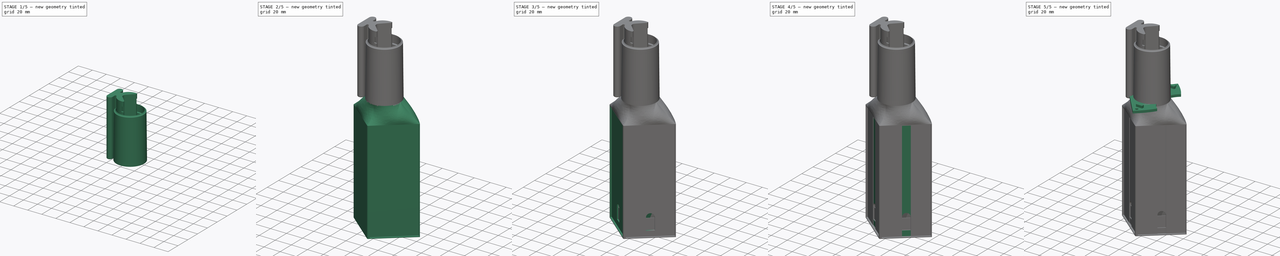
[diagram: build sequence overview — one tinted view per stage of 5, left to right]
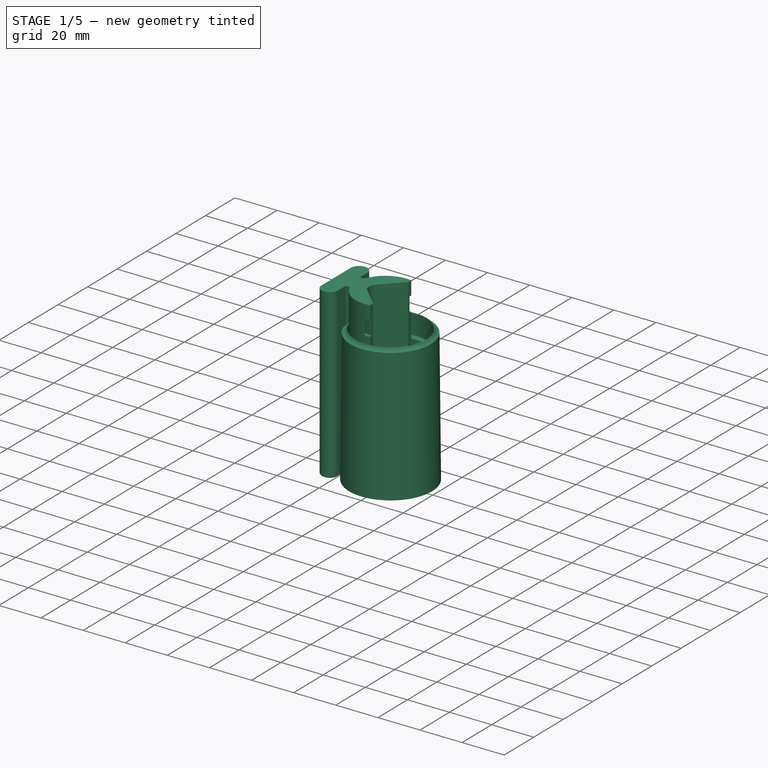
[diagram: stage 1 of 5 — iso view after this stage's code; geometry added in this stage tinted green]
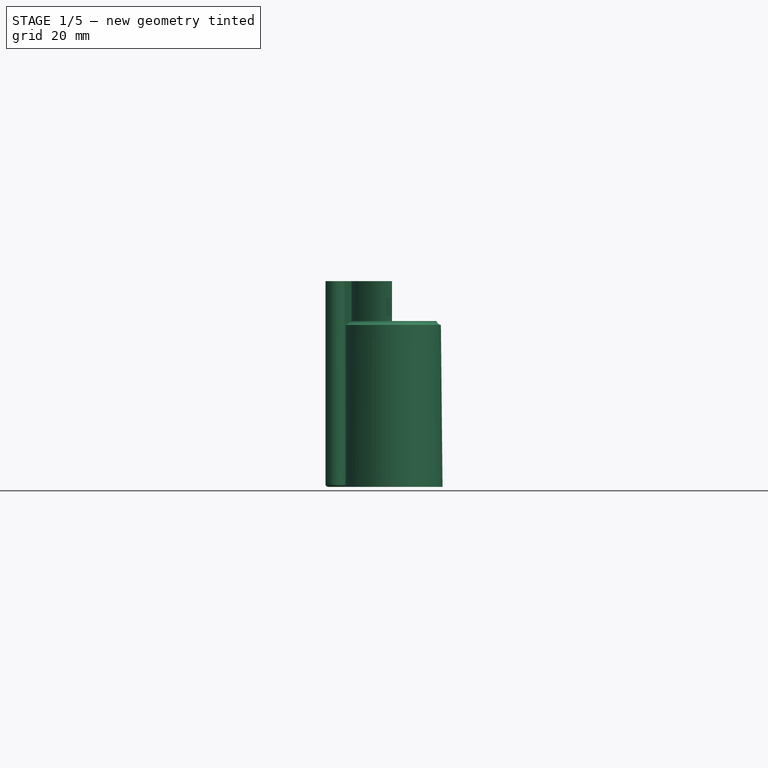
[diagram: stage 1 of 5 — front view after this stage's code; geometry added in this stage tinted green]
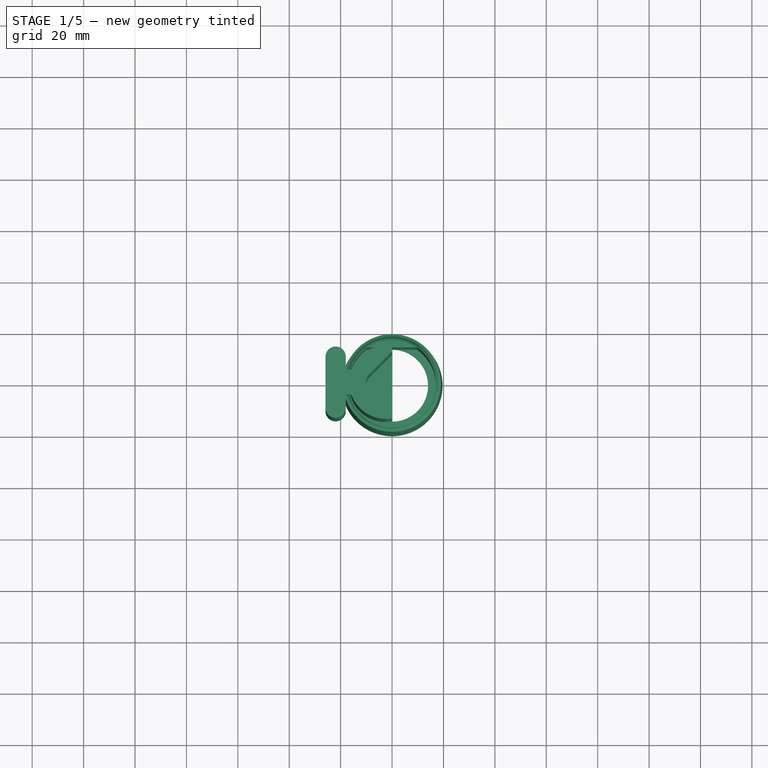
[diagram: stage 1 of 5 — top view after this stage's code; geometry added in this stage tinted green]
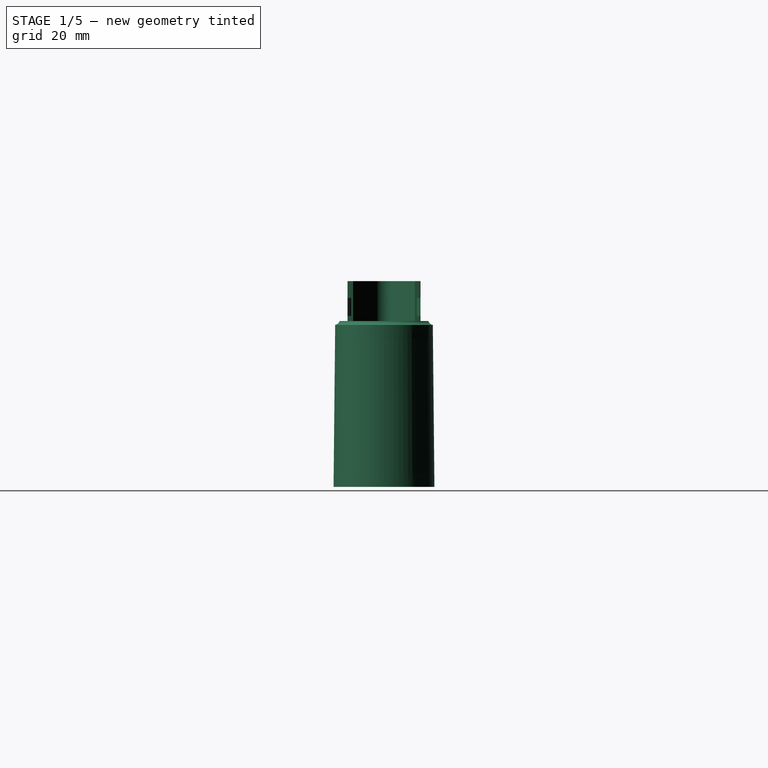
[diagram: stage 1 of 5 — right view after this stage's code; geometry added in this stage tinted green]
FCSTD DOCUMENT  (FreeCAD 1.1R20260414 (Git shallow))
Label: sunbank-2w
Comment: <copyright redacted>
License: Creative Commons Attribution-ShareAlike 4.0
LicenseURL: https://creativecommons.org/licenses/by-sa/4.0/
objects: Sketcher::SketchObject×35, PartDesign::Pocket×17, PartDesign::Pad×9, PartDesign::Fillet×4, PartDesign::Body×3, App::Point×3, PartDesign::Hole×2, PartDesign::Revolution×1, PartDesign::AdditiveLoft×1, PartDesign::SubtractiveLoft×1, PartDesign::Groove×1
note: 181 computed .brp shape members not serialized (recipe doc carries the construction recipe); baked Part::Feature solids carry a one-line shape summary decoded from their .brp

FEATURE [PartDesign::Body] Body  label="2-bottom-cover"
  AllowCompound = false
  Group = -> [Sketch173,Pad005,Sketch174,Pocket063,Sketch175,Hole,Sketch176,Pad006]
  Origin = -> Origin
  Placement = pos=(0,0,-170) rot=(0,0,1;0rad)
  Tip = -> Pad006
FEATURE [Sketcher::SketchObject] Sketch183
  ArcFitTolerance = 1e-06
  AttachmentSupport = -> [XY_Plane030]
  ExternalTypes = [0]
  FullyConstrained = true
  MakeInternals = false
  MapMode = 5
  _ExternalGeoVersion = 0
  sketch-geometry (2):
    g0: GeomPoint [constr] X=0 Y=0 Z=0
    g1: Circle CenterX=0 CenterY=0 CenterZ=0 NormalX=0 NormalY=0 NormalZ=1 AngleXU=0 Radius=14
  constraints (3):
    c: Coincident(g0,g-1)
    c: Diameter(g1) = 28
    c: Coincident(g1,g0)
FEATURE [Sketcher::SketchObject] Sketch184
  ArcFitTolerance = 1e-06
  AttachmentSupport = -> [XZ_Plane029]
  ExternalTypes = [0]
  FullyConstrained = true
  MakeInternals = false
  MapMode = 5
  Placement = pos=(0,0,0) rot=(1,0,0;1.5708rad)
  _ExternalGeoVersion = 0
  sketch-geometry (10):
    g0: LineSegment StartX=14 StartY=3 StartZ=0 EndX=17 EndY=3 EndZ=0
    g1: LineSegment [constr] StartX=17 StartY=3 StartZ=0 EndX=19.6 EndY=3 EndZ=0
    g2: LineSegment StartX=17 StartY=3 StartZ=0 EndX=17 EndY=62.997 EndZ=0
    g3: LineSegment [constr] StartX=17 StartY=62.997 StartZ=0 EndX=19 EndY=62.997 EndZ=0
    g4: LineSegment StartX=19.63 StartY=0 StartZ=0 EndX=19 EndY=62.997 EndZ=0
    g5: LineSegment StartX=17 StartY=62.997 StartZ=0 EndX=17 EndY=64.497 EndZ=0
    g6: LineSegment StartX=17 StartY=64.497 StartZ=0 EndX=17.3 EndY=64.497 EndZ=0
    g7: LineSegment StartX=14 StartY=3 StartZ=0 EndX=14 EndY=0 EndZ=0
    g8: LineSegment StartX=14 StartY=0 StartZ=0 EndX=19.63 EndY=0 EndZ=0
    g9: ArcOfCircle CenterX=19.3975 CenterY=65.1608 CenterZ=0 NormalX=0 NormalY=0 NormalZ=1 AngleXU=0 Radius=2.2 StartAngle=3.4481 EndAngle=4.53072
  constraints (30):
    c: Coincident(g1,g0)
    c: Horizontal(g1)
    c: Horizontal(g0)
    c: Coincident(g2,g0)
    c: Vertical(g2)
    c: Distance(g4,g1) = 60
    c: DistanceX(g-1,g0) = 14
    c: Coincident(g3,g2)
    c: Horizontal(g3)
    c: Vertical(g5)
    c: Coincident(g5,g2)
    c: Coincident(g3,g4)
    c: Coincident(g6,g5)
    c: Horizontal(g6)
    c: Distance(g6,g6) = 0.3
    c: DistanceX(g3,g3) = 2
    c: Distance(g1,g-2) = 19.6
    c: Distance(g0,g-2) = 17
    c: PointOnObject(g4,g-1)
    c: Coincident(g7,g0)
    c: Vertical(g7)
    c: PointOnObject(g7,g-1)
    c: Coincident(g8,g7)
    c: Coincident(g8,g4)
    c: DistanceY(g7,g7) = 3
    c: PointOnObject(g1,g4)
    c: Coincident(g9,g6)
    c: Coincident(g9,g3)
    c: Radius(g9) = 2.2
    c: DistanceY(g5,g5) = 1.5
FEATURE [PartDesign::Revolution] Revolution021  label="Receptacle001"
  Angle = 360
  Angle2 = 60
  Axis = (0,2e-16,1)
  Base = (0,0,0)
  FuseOrder = 1
  Placement = pos=(0,0,0) rot=(1,0,0;1.5708rad)
  Profile = -> Sketch184
  ReferenceAxis = -> Sketch184 [V_Axis]
  Reversed = true
  Suppressed = false
  Type = 0
FEATURE [Sketcher::SketchObject] Sketch185
  ArcFitTolerance = 1e-06
  AttachmentOffset = pos=(0,0,0) rot=(0,0,1;-1.5708rad)
  AttachmentSupport = -> [XY_Plane030]
  ExternalTypes = [0]
  FullyConstrained = true
  MakeInternals = false
  MapMode = 2
  Placement = pos=(0,0,0) rot=(0,0,1;4.71239rad)
  _ExternalGeoVersion = 0
  sketch-geometry (4):
    g0: LineSegment [constr] StartX=0 StartY=0 StartZ=0 EndX=-14 EndY=0 EndZ=0
    g1: LineSegment StartX=-14 StartY=0 StartZ=0 EndX=-14 EndY=12.8452 EndZ=0
    g2: LineSegment StartX=-14 StartY=0 StartZ=0 EndX=-14 EndY=-12.8452 EndZ=0
    g3: ArcOfCircle CenterX=0 CenterY=0 CenterZ=0 NormalX=0 NormalY=0 NormalZ=1 AngleXU=0 Radius=19 StartAngle=2.39918 EndAngle=3.884
  constraints (11):
    c: Distance(g0) = 14
    c: Coincident(g0,g-1)
    c: PointOnObject(g0,g-1)
    c: Coincident(g1,g0)
    c: Vertical(g1)
    c: Coincident(g2,g0)
    c: Vertical(g2)
    c: Coincident(g3,g0)
    c: Coincident(g3,g1)
    c: Coincident(g3,g2)
    c: Radius(g3) = 19
FEATURE [PartDesign::Pad] Pad009  label="Receptacle-keying001"
  BaseFeature = -> Revolution021
  Direction = (0,0,1)
  Length = 55
  Length2 = 10
  Placement = pos=(0,0,0) rot=(1,0,0;1.5708rad)
  Profile = -> Sketch185
  ReferenceAxis = -> Sketch185 [N_Axis]
  SideType = 0
  Suppressed = false
  Type = 0
  Type2 = 0
FEATURE [PartDesign::Body] Body022  label="1-solar-body"
  AllowCompound = false
  Group = -> [Sketch184,Revolution021,Pad009,Pocket068,Pocket069,Sketch185,Sketch186,Sketch187,Sketch188,Sketch189,AdditiveLoft001,SubtractiveLoft001,Sketch190,Pad008,Pocket070,Sketch191,Sketch194,Sketch183,Sketch195,Pocket067,Sketch196,Pocket071,Sketch197,Pad010,Sketch198,Pocket072,Sketch199,Pocket073,Sketch200,Pocket074,Sketch201,Pocket075,Sketch202,Pocket076,Sketch203,Pocket077,Sketch204,Pocket078,Sketch205,+15 more]
  Origin = -> Origin029
  Placement = pos=(0,0,0) rot=(0,0,1;4.71239rad)
  Tip = -> Fillet004
FEATURE [App::Point] Origin031  label="Origin"
  Role = Origin
FEATURE [App::Point] Origin032  label="Origin"
  Role = Origin
FEATURE [App::Point] Origin033
  Role = Origin
FEATURE [Sketcher::SketchObject] Sketch216
  ArcFitTolerance = 1e-06
  AttachmentSupport = -> [Origin030]
  ExternalTypes = [0,0]
  FullyConstrained = true
  MakeInternals = false
  MapMode = 5
  _ExternalGeoVersion = 1
  sketch-geometry (2):
    g0: ArcOfCircle CenterX=-2.39 CenterY=0 CenterZ=0 NormalX=0 NormalY=0 NormalZ=1 AngleXU=0 Radius=14.21 StartAngle=1.4018 EndAngle=4.88138
    g1: LineSegment StartX=1.3e-15 StartY=14.0076 StartZ=0 EndX=4e-15 EndY=-14.0076 EndZ=0
  constraints (7):
    c: PointOnObject(g0,g-1)
    c: PointOnObject(g0,g-2)
    c: PointOnObject(g0,g-2)
    c: Distance(g0,g-2) = 2.39
    c: Radius(g0) = 14.21
    c: Coincident(g1,g0)
    c: Coincident(g1,g0)
FEATURE [Sketcher::SketchObject] Sketch213
  ArcFitTolerance = 1e-06
  AttachmentSupport = -> [XZ_Plane030]
  ExternalTypes = [0]
  FullyConstrained = true
  MakeInternals = false
  MapMode = 5
  Placement = pos=(0,0,0) rot=(1,0,0;1.5708rad)
  _ExternalGeoVersion = 0
  sketch-geometry (18):
    g0: LineSegment StartX=-14.4 StartY=13.5 StartZ=0 EndX=-14.4 EndY=6.5 EndZ=0
    g1: LineSegment StartX=-14.4 StartY=6.5 StartZ=0 EndX=-12.8 EndY=6.5 EndZ=0
    g2: LineSegment StartX=-12.8 StartY=6.5 StartZ=0 EndX=-12.8 EndY=13.5 EndZ=0
    g3: LineSegment StartX=-12.8 StartY=13.5 StartZ=0 EndX=-14.4 EndY=13.5 EndZ=0
    g4: GeomPoint [constr] X=-13.6 Y=10 Z=0
    g5: LineSegment StartX=-14.4 StartY=73.5 StartZ=0 EndX=-14.4 EndY=66.5 EndZ=0
    g6: LineSegment StartX=-14.4 StartY=66.5 StartZ=0 EndX=-12.8 EndY=66.5 EndZ=0
    g7: LineSegment StartX=-12.8 StartY=66.5 StartZ=0 EndX=-12.8 EndY=73.5 EndZ=0
    g8: LineSegment StartX=-12.8 StartY=73.5 StartZ=0 EndX=-14.4 EndY=73.5 EndZ=0
    g9: GeomPoint [constr] X=-13.6 Y=70 Z=0
    g10: LineSegment [constr] StartX=-13.6 StartY=70 StartZ=0 EndX=0 EndY=70 EndZ=0
    g11: LineSegment [constr] StartX=-13.6 StartY=10 StartZ=0 EndX=0 EndY=10 EndZ=0
    g12: LineSegment StartX=-14.4 StartY=36.5 StartZ=0 EndX=-12.8 EndY=36.5 EndZ=0
    g13: LineSegment StartX=-12.8 StartY=36.5 StartZ=0 EndX=-12.8 EndY=43.5 EndZ=0
    g14: LineSegment StartX=-12.8 StartY=43.5 StartZ=0 EndX=-14.4 EndY=43.5 EndZ=0
    g15: LineSegment StartX=-14.4 StartY=43.5 StartZ=0 EndX=-14.4 EndY=36.5 EndZ=0
    g16: GeomPoint [constr] X=-13.6 Y=40 Z=0
    g17: LineSegment [constr] StartX=-13.6 StartY=40 StartZ=0 EndX=0 EndY=40 EndZ=0
  constraints (47):
    c: Coincident(g0,g1)
    c: Coincident(g1,g2)
    c: Coincident(g2,g3)
    c: Coincident(g3,g0)
    c: Vertical(g0)
    c: Vertical(g2)
    c: Horizontal(g1)
    c: Horizontal(g3)
    c: Symmetric(g2,g0,g4)
    c: Coincident(g5,g6)
    c: Coincident(g6,g7)
    c: Coincident(g7,g8)
    c: Coincident(g8,g5)
    c: Vertical(g5)
    c: Vertical(g7)
    c: Horizontal(g6)
    c: Horizontal(g8)
    c: Symmetric(g7,g5,g9)
    c: Distance(g8,g8) = 1.6
    c: DistanceY(g7,g7) = 7
    c: Equal(g5,g0)
    c: Equal(g8,g3)
    c: Coincident(g10,g9)
    c: PointOnObject(g10,g-2)
    c: Horizontal(g10)
    c: DistanceX(g10,g10) = 13.6
    c: Coincident(g11,g4)
    c: Horizontal(g11)
    c: Equal(g11,g10)
    c: PointOnObject(g11,g-2)
    c: Distance(g4,g-1) = 10
    c: DistanceY(g-1,g9) = 70
    c: Coincident(g12,g13)
    c: Coincident(g13,g14)
    c: Coincident(g14,g15)
    c: Coincident(g15,g12)
    c: Horizontal(g12)
    c: Horizontal(g14)
    c: Vertical(g13)
    c: Vertical(g15)
    c: Symmetric(g14,g12,g16)
    c: Coincident(g17,g16)
    c: Horizontal(g17)
    c: Equal(g10,g17)
    c: Equal(g5,g15)
    c: Equal(g14,g6)
    c: Symmetric(g10,g11,g17)
FEATURE [Sketcher::SketchObject] Sketch212
  ArcFitTolerance = 1e-06
  AttachmentSupport = -> [XY_Plane031]
  ExternalTypes = [0]
  FullyConstrained = true
  MakeInternals = false
  MapMode = 5
  _ExternalGeoVersion = 0
  sketch-geometry (22):
    g0: LineSegment StartX=-15.8 StartY=4.9 StartZ=0 EndX=-18 EndY=4.9 EndZ=0
    g1: LineSegment [constr] StartX=-25.9 StartY=-9.925 StartZ=0 EndX=-18 EndY=-9.925 EndZ=0
    g2: LineSegment StartX=-18 StartY=-9.925 StartZ=0 EndX=-18 EndY=-4.9 EndZ=0
    g3: LineSegment StartX=-18 StartY=-4.9 StartZ=0 EndX=-15.8 EndY=-4.9 EndZ=0
    g4: LineSegment StartX=-25.9 StartY=9.925 StartZ=0 EndX=-25.9 EndY=0 EndZ=0
    g5: LineSegment StartX=-25.9 StartY=0 StartZ=0 EndX=-25.9 EndY=-9.925 EndZ=0
    g6: ArcOfCircle CenterX=-21.95 CenterY=9.925 CenterZ=0 NormalX=0 NormalY=0 NormalZ=1 AngleXU=0 Radius=3.95 StartAngle=1e-16 EndAngle=3.14159
    g7: ArcOfCircle CenterX=-21.95 CenterY=-9.925 CenterZ=0 NormalX=0 NormalY=0 NormalZ=1 AngleXU=0 Radius=3.95 StartAngle=3.14159 EndAngle=6.28319
    g8: ArcOfCircle CenterX=-2.45728 CenterY=0 CenterZ=0 NormalX=0 NormalY=0 NormalZ=1 AngleXU=0 Radius=14.214 StartAngle=1.39705 EndAngle=2.78964
    g9: ArcOfCircle CenterX=-2.45728 CenterY=0 CenterZ=0 NormalX=0 NormalY=0 NormalZ=1 AngleXU=0 Radius=14.214 StartAngle=3.49354 EndAngle=4.88614
    g10: LineSegment [constr] StartX=-2.45728 StartY=0 StartZ=0 EndX=0 EndY=0 EndZ=0
    g11: LineSegment StartX=7e-16 StartY=12 StartZ=0 EndX=-9e-16 EndY=14 EndZ=0
    g12: LineSegment StartX=-2.2e-15 StartY=-12 StartZ=0 EndX=-2.2e-15 EndY=-14 EndZ=0
    g13: ArcOfCircle [constr] CenterX=0 CenterY=0 CenterZ=0 NormalX=0 NormalY=0 NormalZ=1 AngleXU=0 Radius=12 StartAngle=1.5708 EndAngle=4.71239
    g14: LineSegment StartX=-18 StartY=4.9 StartZ=0 EndX=-18 EndY=9.925 EndZ=0
    g15: LineSegment [constr] StartX=-18 StartY=4.9 StartZ=0 EndX=-18 EndY=0 EndZ=0
    g16: LineSegment [constr] StartX=-18 StartY=0 StartZ=0 EndX=-18 EndY=-4.9 EndZ=0
    g17: LineSegment [constr] StartX=-25.9 StartY=9.925 StartZ=0 EndX=-18 EndY=9.925 EndZ=0
    g18: LineSegment StartX=7e-16 StartY=12 StartZ=0 EndX=-8.81802 EndY=3.18198 EndZ=0
    g19: LineSegment StartX=-8.81802 StartY=-3.18198 StartZ=0 EndX=-1.8e-15 EndY=-12 EndZ=0
    g20: ArcOfCircle CenterX=-5.63604 CenterY=6e-16 CenterZ=0 NormalX=0 NormalY=0 NormalZ=1 AngleXU=0 Radius=4.5 StartAngle=2.35619 EndAngle=3.92699
    g21: GeomPoint [constr] X=-12 Y=0 Z=0
  constraints (62):
    c: Horizontal(g0)
    c: Horizontal(g1)
    c: Vertical(g2)
    c: Coincident(g3,g2)
    c: Horizontal(g3)
    c: PointOnObject(g4,g-1)
    c: Vertical(g4)
    c: Coincident(g5,g4)
    c: Coincident(g5,g1)
    c: Vertical(g5)
    c: DistanceY(g7,g4) = 19.85
    c: Equal(g3,g0)
    c: DistanceX(g0,g0) = 2.2
    c: Coincident(g7,g1)
    c: Coincident(g7,g1)
    c: Equal(g4,g5)
    c: DistanceY(g2,g0) = 9.8
    c: PointOnObject(g8,g-1)
    c: Coincident(g8,g0)
    c: Coincident(g9,g8)
    c: Coincident(g9,g3)
    c: Coincident(g10,g8)
    c: Coincident(g11,g8)
    c: Coincident(g12,g9)
    c: Coincident(g13,g10)
    c: Coincident(g13,g11)
    c: Coincident(g13,g12)
    c: PointOnObject(g7,g1)
    c: Coincident(g14,g0)
    c: Coincident(g14,g6)
    c: Vertical(g14)
    c: Coincident(g15,g0)
    c: PointOnObject(g15,g-1)
    c: Vertical(g15)
    c: Coincident(g16,g15)
    c: Coincident(g16,g2)
    c: Equal(g15,g16)
    c: Coincident(g10,g-1)
    c: Coincident(g2,g1)
    c: Coincident(g6,g4)
    c: Coincident(g17,g4)
    c: Coincident(g17,g6)
    c: PointOnObject(g6,g17)
    c: Horizontal(g17)
    c: DistanceX(g17,g17) = 7.9
    c: Vertical(g16)
    c: Vertical(g12)
    c: PointOnObject(g8,g-2)
    c: PointOnObject(g11,g-2)
    c: Diameter(g13) = 24
    c: DistanceY(g11,g11) = 2
    c: PointOnObject(g12,g-2)
    c: Distance(g15,g13) = 6
    c: Coincident(g18,g11)
    c: PointOnObject(g21,g-1)
    c: Coincident(g19,g12)
    c: PointOnObject(g21,g13)
    c: PointOnObject(g21,g18)
    c: PointOnObject(g21,g19)
    c: Tangent(g18,g20) = -1.5708
    c: Tangent(g19,g20) = -1.5708
    c: Radius(g20) = 4.5
FEATURE [PartDesign::Pad] Pad013  label="pad-main-profile"
  Direction = (0,0,1)
  Length = 80
  Length2 = 10
  Profile = -> Sketch212
  ReferenceAxis = -> Sketch212 [N_Axis]
  SideType = 0
  Suppressed = false
  Type = 0
  Type2 = 0
FEATURE [PartDesign::Groove] Groove003  label="groove-zip-ties"
  Angle = 360
  Angle2 = 60
  Axis = (0,2e-16,1)
  Base = (0,0,0)
  BaseFeature = -> Pad013
  Profile = -> Sketch213
  ReferenceAxis = -> Sketch213 [V_Axis]
  Reversed = true
  Suppressed = false
  Type = 0
FEATURE [Sketcher::SketchObject] Sketch214
  ArcFitTolerance = 1e-06
  AttachmentSupport = -> [Groove003]
  ExternalTypes = [0]
  FullyConstrained = false
  MakeInternals = false
  MapMode = 5
  Placement = pos=(-25.9,0,0) rot=(0.57735,-0.57735,-0.57735;2.0944rad)
  _ExternalGeoVersion = 0
  sketch-geometry (2):
    g0: Circle CenterX=0 CenterY=20 CenterZ=0 NormalX=0 NormalY=0 NormalZ=1 AngleXU=0 Radius=1.78731
    g1: Circle CenterX=0 CenterY=60 CenterZ=0 NormalX=0 NormalY=0 NormalZ=1 AngleXU=0 Radius=1.78731
  constraints (5):
    c: PointOnObject(g0,g-2)
    c: Distance(g0,g-1) = 20
    c: PointOnObject(g1,g-2)
    c: Equal(g0,g1)
    c: Distance(g1,g-1) = 60
FEATURE [PartDesign::Hole] Hole001  label="hole-anti-rotation-screw"
  BaseFeature = -> Groove003
  BaseProfileType = 6
  CustomThreadClearance = 0
  Depth = 25
  DepthType = 0
  Diameter = 2.8
  DrillForDepth = false
  DrillPoint = 1
  DrillPointAngle = 118
  HoleCutCountersinkAngle = 90
  HoleCutCustomValues = false
  HoleCutDepth = 12
  HoleCutDiameter = 7.5
  HoleCutType = 1
  ModelThread = false
  Profile = -> Sketch214
  Suppressed = false
  Tapered = false
  TaperedAngle = 90
  ThreadClass = 0
  ThreadDepth = 25
  ThreadDepthType = 0
  ThreadDiameter = 2.8
  ThreadDirection = 0
  ThreadFit = 0
  ThreadSize = 0
  ThreadType = 0
  Threaded = false
  UseCustomThreadClearance = false
FEATURE [PartDesign::Pad] Pad  label="pad-top-stop"
  BaseFeature = -> Hole001
  Direction = (0,0,1)
  Length = 2
  Length2 = 10
  Profile = -> Sketch216
  ReferenceAxis = -> Sketch216 [N_Axis]
  Refine = true
  SideType = 0
  Suppressed = false
  Type = 0
  Type2 = 0
FEATURE [PartDesign::Fillet] Fillet
  Base = -> Pad [Edge111,Edge113,Edge134,Edge116,Edge118,Edge119,Edge109]
  BaseFeature = -> Pad
  Radius = 1
  Refine = true
  SupportTransform = false
  Suppressed = false
  UseAllEdges = false
FEATURE [PartDesign::Body] Body023  label="3-dock-vgroove"
  AllowCompound = false
  Group = -> [Sketch212,Pad013,Sketch213,Groove003,Sketch214,Hole001,Pad,Sketch216,Fillet]
  Origin = -> Origin030
  Placement = pos=(63,0,-145) rot=(0,0,1;0rad)
  Tip = -> Fillet
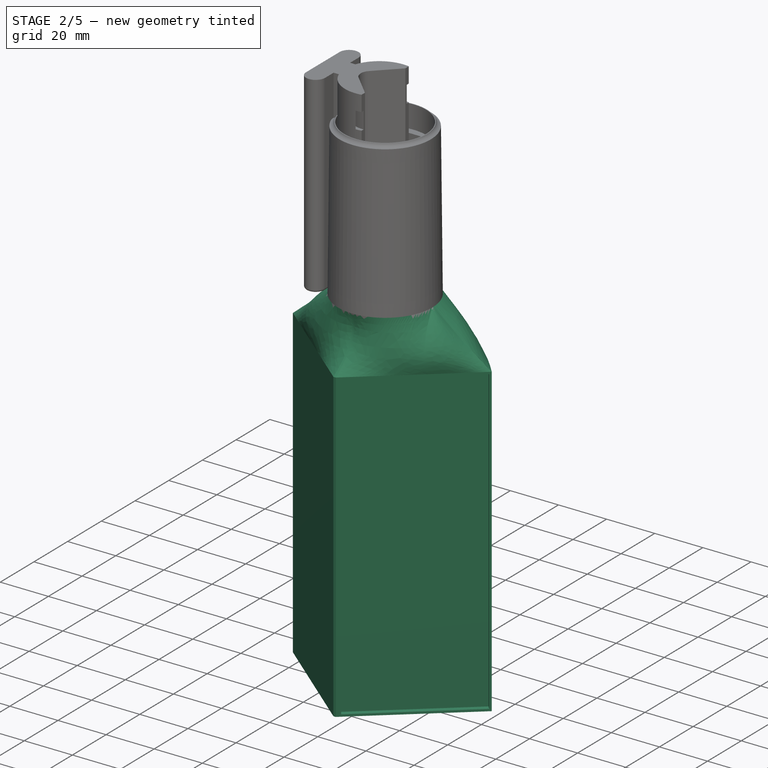
[diagram: stage 2 of 5 — iso view after this stage's code; geometry added in this stage tinted green]
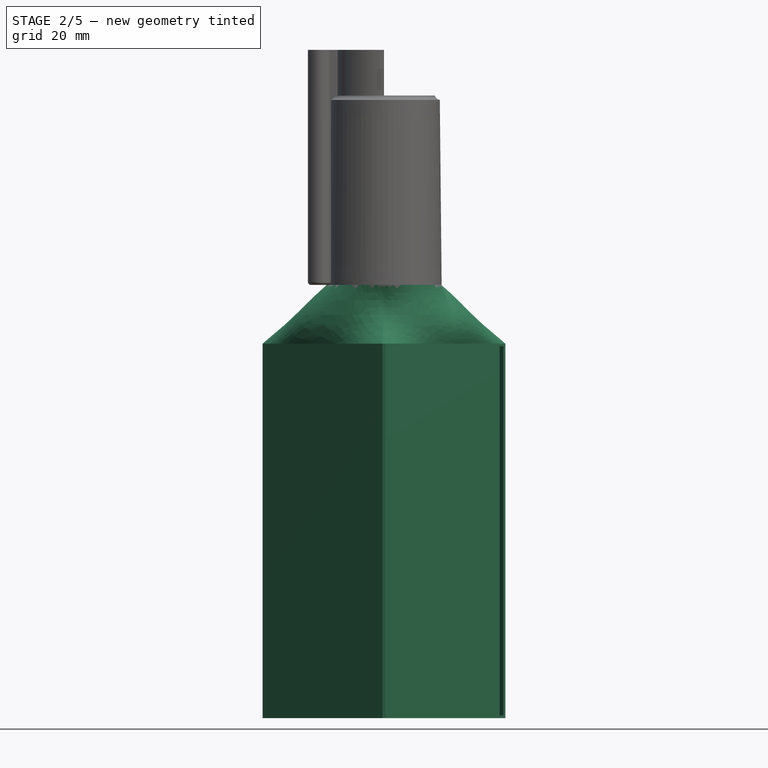
[diagram: stage 2 of 5 — front view after this stage's code; geometry added in this stage tinted green]
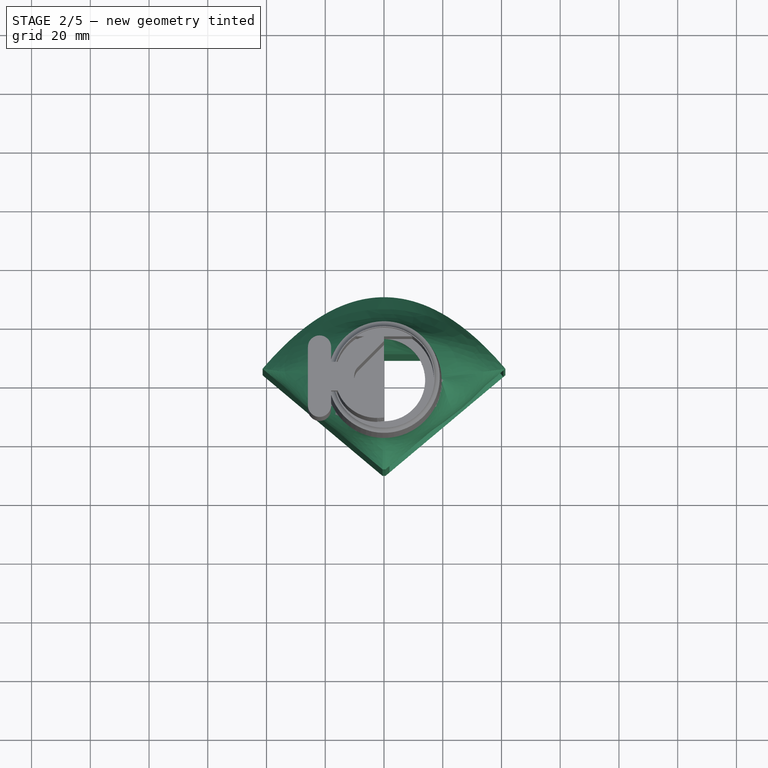
[diagram: stage 2 of 5 — top view after this stage's code; geometry added in this stage tinted green]
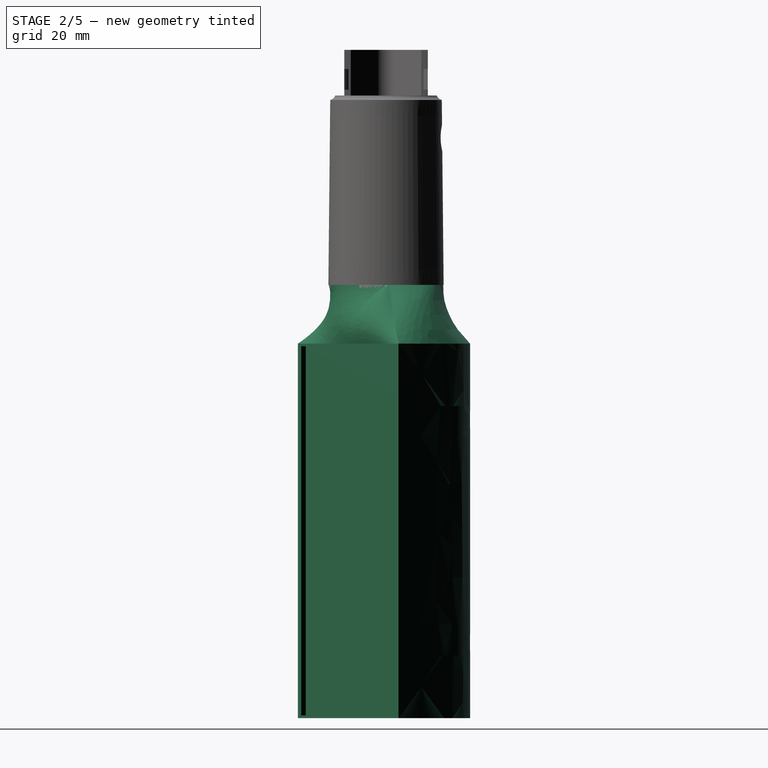
[diagram: stage 2 of 5 — right view after this stage's code; geometry added in this stage tinted green]
FEATURE [Sketcher::SketchObject] Sketch186
  ArcFitTolerance = 1e-06
  AttachmentOffset = pos=(0,0,-20) rot=(0,0,1;0rad)
  AttachmentSupport = -> [XZ_Plane029]
  ExternalTypes = [0]
  FullyConstrained = true
  MakeInternals = false
  MapMode = 5
  Placement = pos=(0,20,-4.4e-15) rot=(1,0,0;1.5708rad)
  _ExternalGeoVersion = 0
  sketch-geometry (1):
    g0: Circle CenterX=0 CenterY=50 CenterZ=0 NormalX=0 NormalY=0 NormalZ=1 AngleXU=0 Radius=1.9
  constraints (3):
    c: Diameter(g0) = 3.8
    c: PointOnObject(g0,g-2)
    c: Distance(g0,g-1) = 50
FEATURE [PartDesign::Pocket] Pocket068  label="Receptacle Screw Hole001"
  BaseFeature = -> Pad009
  Direction = (0,1,-2e-16)
  Length = 10
  Length2 = 5
  Placement = pos=(0,0,0) rot=(1,0,0;1.5708rad)
  Profile = -> Sketch186
  ReferenceAxis = -> Sketch186 [N_Axis]
  Reversed = true
  SideType = 0
  Suppressed = false
  Type = 0
  Type2 = 0
FEATURE [Sketcher::SketchObject] Sketch187
  ArcFitTolerance = 1e-06
  AttachmentOffset = pos=(0,0,-20) rot=(0,0,1;0rad)
  AttachmentSupport = -> [XZ_Plane029]
  ExternalGeometry = -> [Sketch186]
  ExternalTypes = [0]
  FullyConstrained = true
  MakeInternals = false
  MapMode = 5
  Placement = pos=(0,20,-4.4e-15) rot=(1,0,0;1.5708rad)
  _ExternalGeoVersion = 0
  sketch-geometry (1):
    g0: Circle CenterX=0 CenterY=50 CenterZ=0 NormalX=0 NormalY=0 NormalZ=1 AngleXU=0 Radius=4.5
  constraints (2):
    c: Diameter(g0) = 9
    c: Coincident(g0,g-3)
FEATURE [PartDesign::Pocket] Pocket069  label="Receptacle Screw Bore001"
  BaseFeature = -> Pocket068
  Direction = (0,1,-2e-16)
  Length = 3
  Length2 = 5
  Placement = pos=(0,0,0) rot=(1,0,0;1.5708rad)
  Profile = -> Sketch187 [Edge1]
  ReferenceAxis = -> Sketch187 [N_Axis]
  Reversed = true
  SideType = 0
  Suppressed = false
  Type = 0
  Type2 = 0
FEATURE [Sketcher::SketchObject] Sketch188
  ArcFitTolerance = 1e-06
  AttachmentOffset = pos=(0,0,-20) rot=(0,0,1;0rad)
  AttachmentSupport = -> [XY_Plane030]
  ExternalTypes = [0]
  FullyConstrained = true
  MakeInternals = false
  MapMode = 5
  Placement = pos=(0,0,-20) rot=(0,0,1;0rad)
  _ExternalGeoVersion = 0
  sketch-geometry (23):
    g0: LineSegment [constr] StartX=0 StartY=20 StartZ=0 EndX=30 EndY=20 EndZ=0
    g1: LineSegment [constr] StartX=0 StartY=20 StartZ=0 EndX=-30 EndY=20 EndZ=0
    g2: ArcOfCircle [constr] CenterX=-30 CenterY=0 CenterZ=0 NormalX=0 NormalY=0 NormalZ=1 AngleXU=0 Radius=20 StartAngle=1.5708 EndAngle=1.74533
    g3: ArcOfCircle [constr] CenterX=30 CenterY=0 CenterZ=0 NormalX=0 NormalY=0 NormalZ=1 AngleXU=0 Radius=20 StartAngle=1.22173 EndAngle=1.5708
    g4: LineSegment [constr] StartX=-30 StartY=20 StartZ=0 EndX=-30 EndY=0 EndZ=0
    g5: LineSegment [constr] StartX=-30 StartY=0 StartZ=0 EndX=-33.473 EndY=19.6962 EndZ=0
    g6: LineSegment [constr] StartX=30 StartY=20 StartZ=0 EndX=30 EndY=0 EndZ=0
    g7: LineSegment [constr] StartX=30 StartY=0 StartZ=0 EndX=36.8404 EndY=18.7939 EndZ=0
    g8: LineSegment [constr] StartX=-30 StartY=0 StartZ=0 EndX=0 EndY=0 EndZ=0
    g9: LineSegment [constr] StartX=0 StartY=0 StartZ=0 EndX=30 EndY=0 EndZ=0
    g10: LineSegment [constr] StartX=0 StartY=0 StartZ=0 EndX=0 EndY=-30 EndZ=0
    g11: LineSegment [constr] StartX=0 StartY=0 StartZ=0 EndX=0 EndY=20 EndZ=0
    g12: LineSegment StartX=0.5 StartY=-30 StartZ=0 EndX=41.3302 EndY=4.26058 EndZ=0
    g13: LineSegment StartX=-41.3302 StartY=4.26058 StartZ=0 EndX=-0.5 EndY=-30 EndZ=0
    g14: Circle [constr] CenterX=-41.3302 CenterY=4.26058 CenterZ=0 NormalX=0 NormalY=0 NormalZ=1 AngleXU=0 Radius=1
    g15: Circle [constr] CenterX=0 CenterY=53 CenterZ=0 NormalX=0 NormalY=0 NormalZ=1 AngleXU=0 Radius=1
    g16: Circle [constr] CenterX=41.3302 CenterY=4.26058 CenterZ=0 NormalX=0 NormalY=0 NormalZ=1 AngleXU=0 Radius=1
    g17: BSplineCurve PolesCount=3 KnotsCount=2 Degree=2 IsPeriodic=0
    g18: GeomPoint [constr] X=-41.3302 Y=4.26058 Z=0
    g19: GeomPoint [constr] X=41.3302 Y=4.26058 Z=0
    g20: LineSegment StartX=-0.5 StartY=-30 StartZ=0 EndX=0 EndY=-30 EndZ=0
    g21: LineSegment StartX=0 StartY=-30 StartZ=0 EndX=0.5 EndY=-30 EndZ=0
    g22: LineSegment [constr] StartX=-41.3302 StartY=4.26058 StartZ=0 EndX=41.3302 EndY=4.26058 EndZ=0
  constraints (58):
    c: PointOnObject(g0,g-2)
    c: Coincident(g1,g0)
    c: Horizontal(g1)
    c: Horizontal(g0)
    c: Coincident(g2,g1)
    c: Coincident(g3,g0)
    c: Coincident(g4,g1)
    c: Coincident(g4,g2)
    c: Vertical(g4)
    c: Coincident(g5,g2)
    c: Coincident(g5,g2)
    c: Coincident(g6,g0)
    c: Coincident(g6,g3)
    c: Coincident(g7,g3)
    c: Coincident(g7,g3)
    c: Vertical(g6)
    c: DistanceX(g1,g0) = 60
    c: PointOnObject(g2,g-1)
    c: Coincident(g8,g2)
    c: Coincident(g8,g-1)
    c: Coincident(g9,g8)
    c: Coincident(g9,g3)
    c: Equal(g9,g8)
    c: PointOnObject(g3,g-1)
    c: Angle(g7,g-1) = -1.22173
    c: Angle(g-1,g5) = -1.39626
    c: Coincident(g10,g8)
    c: Vertical(g10)
    c: Coincident(g11,g8)
    c: Coincident(g11,g0)
    c: DistanceY(g11,g11) = 20
    c: DistanceY(g10,g10) = 30
    c: Distance(g12,g12) = 53.3
    c: Equal(g13,g12)
    c: Weight(g14) = 1
    c: Equal(g14,g15)
    c: Equal(g14,g16)
    c: InternalAlignment(g14,g17)
    c: InternalAlignment(g15,g17)
    c: InternalAlignment(g16,g17)
    c: InternalAlignment(g18,g17)
    c: InternalAlignment(g19,g17)
    c: PointOnObject(g15,g-2)
    c: Coincident(g17,g12)
    c: Coincident(g17,g13)
    c: Angle(g12,g13) = 1.74533
    c: DistanceX(g13,g12) = 1
    c: Coincident(g20,g13)
    c: Coincident(g20,g10)
    c: Coincident(g21,g10)
    c: Coincident(g21,g12)
    c: Horizontal(g21)
    c: Horizontal(g20)
    c: Equal(g20,g21)
    c: Distance(g15,g-1) = 53
    c: Coincident(g22,g13)
    c: Coincident(g22,g12)
    c: Horizontal(g22)
FEATURE [Sketcher::SketchObject] Sketch189
  ArcFitTolerance = 1e-06
  AttachmentSupport = -> [XY_Plane030]
  ExternalTypes = [0]
  FullyConstrained = true
  MakeInternals = false
  MapMode = 5
  _ExternalGeoVersion = 0
  sketch-geometry (1):
    g0: Circle CenterX=0 CenterY=0 CenterZ=0 NormalX=0 NormalY=0 NormalZ=1 AngleXU=0 Radius=19.5
  constraints (2):
    c: Diameter(g0) = 39
    c: Coincident(g0,g-1)
FEATURE [Sketcher::SketchObject] Sketch190
  ArcFitTolerance = 1e-06
  AttachmentOffset = pos=(0,0,-20) rot=(0,0,1;0rad)
  AttachmentSupport = -> [XY_Plane030]
  ExternalTypes = [0]
  FullyConstrained = true
  MakeInternals = false
  MapMode = 5
  Placement = pos=(0,0,-20) rot=(0,0,1;0rad)
  _ExternalGeoVersion = 0
  expr: Constraints[16] = Sketch188.Constraints[16]
  expr: Constraints[24] = Sketch188.Constraints[24]
  expr: Constraints[25] = Sketch188.Constraints[25]
  expr: Constraints[30] = Sketch188.Constraints[30]
  expr: Constraints[31] = Sketch188.Constraints[31]
  expr: Constraints[32] = Sketch188.Constraints[32]
  expr: Constraints[34] = Sketch188.Constraints[34]
  expr: Constraints[45] = Sketch188.Constraints[45]
  expr: Constraints[46] = Sketch188.Constraints[46]
  expr: Constraints[54] = Sketch188.Constraints[54]
  sketch-geometry (23):
    g0: LineSegment [constr] StartX=0 StartY=20 StartZ=0 EndX=30 EndY=20 EndZ=0
    g1: LineSegment [constr] StartX=0 StartY=20 StartZ=0 EndX=-30 EndY=20 EndZ=0
    g2: ArcOfCircle [constr] CenterX=-30 CenterY=0 CenterZ=0 NormalX=0 NormalY=0 NormalZ=1 AngleXU=0 Radius=20 StartAngle=1.5708 EndAngle=1.74533
    g3: ArcOfCircle [constr] CenterX=30 CenterY=0 CenterZ=0 NormalX=0 NormalY=0 NormalZ=1 AngleXU=0 Radius=20 StartAngle=1.22173 EndAngle=1.5708
    g4: LineSegment [constr] StartX=-30 StartY=20 StartZ=0 EndX=-30 EndY=0 EndZ=0
    g5: LineSegment [constr] StartX=-30 StartY=0 StartZ=0 EndX=-33.473 EndY=19.6962 EndZ=0
    g6: LineSegment [constr] StartX=30 StartY=20 StartZ=0 EndX=30 EndY=0 EndZ=0
    g7: LineSegment [constr] StartX=30 StartY=0 StartZ=0 EndX=36.8404 EndY=18.7939 EndZ=0
    g8: LineSegment [constr] StartX=-30 StartY=0 StartZ=0 EndX=0 EndY=0 EndZ=0
    g9: LineSegment [constr] StartX=0 StartY=0 StartZ=0 EndX=30 EndY=0 EndZ=0
    g10: LineSegment [constr] StartX=0 StartY=0 StartZ=0 EndX=0 EndY=-30 EndZ=0
    g11: LineSegment [constr] StartX=0 StartY=0 StartZ=0 EndX=0 EndY=20 EndZ=0
    g12: LineSegment StartX=0.5 StartY=-30 StartZ=0 EndX=41.3302 EndY=4.26058 EndZ=0
    g13: LineSegment StartX=-41.3302 StartY=4.26058 StartZ=0 EndX=-0.5 EndY=-30 EndZ=0
    g14: Circle [constr] CenterX=-41.3302 CenterY=4.26058 CenterZ=0 NormalX=0 NormalY=0 NormalZ=1 AngleXU=0 Radius=1
    g15: Circle [constr] CenterX=0 CenterY=53 CenterZ=0 NormalX=0 NormalY=0 NormalZ=1 AngleXU=0 Radius=1
    g16: Circle [constr] CenterX=41.3302 CenterY=4.26058 CenterZ=0 NormalX=0 NormalY=0 NormalZ=1 AngleXU=0 Radius=1
    g17: BSplineCurve PolesCount=3 KnotsCount=2 Degree=2 IsPeriodic=0
    g18: GeomPoint [constr] X=-41.3302 Y=4.26058 Z=0
    g19: GeomPoint [constr] X=41.3302 Y=4.26058 Z=0
    g20: LineSegment StartX=-0.5 StartY=-30 StartZ=0 EndX=0 EndY=-30 EndZ=0
    g21: LineSegment StartX=0 StartY=-30 StartZ=0 EndX=0.5 EndY=-30 EndZ=0
    g22: LineSegment [constr] StartX=-41.3302 StartY=4.26058 StartZ=0 EndX=41.3302 EndY=4.26058 EndZ=0
  constraints (58):
    c: PointOnObject(g0,g-2)
    c: Coincident(g1,g0)
    c: Horizontal(g1)
    c: Horizontal(g0)
    c: Coincident(g2,g1)
    c: Coincident(g3,g0)
    c: Coincident(g4,g1)
    c: Coincident(g4,g2)
    c: Vertical(g4)
    c: Coincident(g5,g2)
    c: Coincident(g5,g2)
    c: Coincident(g6,g0)
    c: Coincident(g6,g3)
    c: Coincident(g7,g3)
    c: Coincident(g7,g3)
    c: Vertical(g6)
    c: DistanceX(g1,g0) = 60
    c: PointOnObject(g2,g-1)
    c: Coincident(g8,g2)
    c: Coincident(g8,g-1)
    c: Coincident(g9,g8)
    c: Coincident(g9,g3)
    c: Equal(g9,g8)
    c: PointOnObject(g3,g-1)
    c: Angle(g7,g-1) = -1.22173
    c: Angle(g-1,g5) = -1.39626
    c: Coincident(g10,g8)
    c: Vertical(g10)
    c: Coincident(g11,g8)
    c: Coincident(g11,g0)
    c: DistanceY(g11,g11) = 20
    c: DistanceY(g10,g10) = 30
    c: Distance(g12,g12) = 53.3
    c: Equal(g13,g12)
    c: Weight(g14) = 1
    c: Equal(g14,g15)
    c: Equal(g14,g16)
    c: InternalAlignment(g14,g17)
    c: InternalAlignment(g15,g17)
    c: InternalAlignment(g16,g17)
    c: InternalAlignment(g18,g17)
    c: InternalAlignment(g19,g17)
    c: PointOnObject(g15,g-2)
    c: Coincident(g17,g12)
    c: Coincident(g17,g13)
    c: Angle(g12,g13) = 1.74533
    c: DistanceX(g13,g12) = 1
    c: Coincident(g20,g13)
    c: Coincident(g20,g10)
    c: Coincident(g21,g10)
    c: Coincident(g21,g12)
    c: Horizontal(g21)
    c: Horizontal(g20)
    c: Equal(g20,g21)
    c: Distance(g15,g-1) = 53
    c: Coincident(g22,g13)
    c: Coincident(g22,g12)
    c: Horizontal(g22)
FEATURE [Sketcher::SketchObject] Sketch191
  ArcFitTolerance = 1e-06
  AttachmentOffset = pos=(0,0,-147.5) rot=(0,0,1;0rad)
  AttachmentSupport = -> [XY_Plane030]
  ExternalGeometry = -> [Sketch188]
  ExternalTypes = [0]
  FullyConstrained = true
  MakeInternals = false
  MapMode = 5
  Placement = pos=(0,0,-147.5) rot=(0,0,1;0rad)
  _ExternalGeoVersion = 0
  sketch-geometry (12):
    g0: LineSegment StartX=31 StartY=0.814168 StartZ=0 EndX=31 EndY=9.18583 EndZ=0
    g1: LineSegment StartX=31 StartY=9.18583 StartZ=0 EndX=-31 EndY=9.18583 EndZ=0
    g2: LineSegment StartX=-31 StartY=9.18583 StartZ=0 EndX=-31 EndY=0.814168 EndZ=0
    g3: GeomPoint [constr] X=0 Y=5 Z=0
    g4: LineSegment [constr] StartX=9.54844 StartY=0.814168 StartZ=0 EndX=31 EndY=0.814168 EndZ=0
    g5: LineSegment [constr] StartX=-31 StartY=0.814168 StartZ=0 EndX=-9.54844 EndY=0.814168 EndZ=0
    g6: LineSegment [constr] StartX=9.54844 StartY=-17.1858 StartZ=0 EndX=9.54844 EndY=0.814168 EndZ=0
    g7: LineSegment [constr] StartX=-9.54844 StartY=0.814168 StartZ=0 EndX=-9.54844 EndY=-17.1858 EndZ=0
    g8: LineSegment [constr] StartX=-9.54844 StartY=-17.1858 StartZ=0 EndX=9.54844 EndY=-17.1858 EndZ=0
    g9: LineSegment StartX=-31 StartY=0.814168 StartZ=0 EndX=-9.54844 EndY=-17.1858 EndZ=0
    g10: LineSegment StartX=9.54844 StartY=-17.1858 StartZ=0 EndX=31 EndY=0.814168 EndZ=0
    g11: ArcOfCircle CenterX=5e-16 CenterY=-6 CenterZ=0 NormalX=0 NormalY=0 NormalZ=1 AngleXU=0 Radius=14.707 StartAngle=4.0058 EndAngle=5.41898
  constraints (32):
    c: Coincident(g4,g0)
    c: Coincident(g0,g1)
    c: Coincident(g1,g2)
    c: Coincident(g2,g5)
    c: Horizontal(g1)
    c: Vertical(g0)
    c: Vertical(g2)
    c: Symmetric(g1,g5,g3)
    c: PointOnObject(g3,g-2)
    c: Distance(g1,g1) = 62
    c: Distance(g3,g-1) = 5
    c: Coincident(g6,g4)
    c: Horizontal(g4)
    c: Coincident(g5,g7)
    c: Horizontal(g5)
    c: Coincident(g8,g6)
    c: Coincident(g7,g8)
    c: Horizontal(g8)
    c: Vertical(g6)
    c: Vertical(g7)
    c: Equal(g4,g5)
    c: Equal(g7,g6)
    c: DistanceY(g6,g6) = 18
    c: Coincident(g9,g2)
    c: Coincident(g9,g7)
    c: Coincident(g10,g6)
    c: Coincident(g10,g0)
    c: Parallel(g-4,g10)
    c: Distance(g10,g-4) = 4
    c: Coincident(g11,g7)
    c: Coincident(g11,g6)
    c: Distance(g11,g-1) = 6
FEATURE [Sketcher::SketchObject] Sketch194
  ArcFitTolerance = 1e-06
  AttachmentOffset = pos=(0,0,-20) rot=(0,0,1;0rad)
  AttachmentSupport = -> [XY_Plane030]
  ExternalGeometry = -> [Sketch188]
  ExternalTypes = [0]
  FullyConstrained = true
  MakeInternals = false
  MapMode = 5
  Placement = pos=(0,0,-20) rot=(0,0,1;0rad)
  _ExternalGeoVersion = 0
  expr: Constraints[10] = Sketch191.Constraints[10]
  expr: Constraints[22] = Sketch191.Constraints[22]
  expr: Constraints[28] = Sketch191.Constraints[28]
  expr: Constraints[31] = Sketch191.Constraints[31]
  expr: Constraints[9] = Sketch191.Constraints[9]
  sketch-geometry (12):
    g0: LineSegment StartX=31 StartY=0.814168 StartZ=0 EndX=31 EndY=9.18583 EndZ=0
    g1: LineSegment StartX=31 StartY=9.18583 StartZ=0 EndX=-31 EndY=9.18583 EndZ=0
    g2: LineSegment StartX=-31 StartY=9.18583 StartZ=0 EndX=-31 EndY=0.814168 EndZ=0
    g3: GeomPoint [constr] X=0 Y=5 Z=0
    g4: LineSegment [constr] StartX=9.54844 StartY=0.814168 StartZ=0 EndX=31 EndY=0.814168 EndZ=0
    g5: LineSegment [constr] StartX=-31 StartY=0.814168 StartZ=0 EndX=-9.54844 EndY=0.814168 EndZ=0
    g6: LineSegment [constr] StartX=9.54844 StartY=-17.1858 StartZ=0 EndX=9.54844 EndY=0.814168 EndZ=0
    g7: LineSegment [constr] StartX=-9.54844 StartY=0.814168 StartZ=0 EndX=-9.54844 EndY=-17.1858 EndZ=0
    g8: LineSegment [constr] StartX=-9.54844 StartY=-17.1858 StartZ=0 EndX=9.54844 EndY=-17.1858 EndZ=0
    g9: LineSegment StartX=-31 StartY=0.814168 StartZ=0 EndX=-9.54844 EndY=-17.1858 EndZ=0
    g10: LineSegment StartX=9.54844 StartY=-17.1858 StartZ=0 EndX=31 EndY=0.814168 EndZ=0
    g11: ArcOfCircle CenterX=0 CenterY=-6 CenterZ=0 NormalX=0 NormalY=0 NormalZ=1 AngleXU=0 Radius=14.707 StartAngle=4.0058 EndAngle=5.41898
  constraints (32):
    c: Coincident(g4,g0)
    c: Coincident(g0,g1)
    c: Coincident(g1,g2)
    c: Coincident(g2,g5)
    c: Horizontal(g1)
    c: Vertical(g0)
    c: Vertical(g2)
    c: Symmetric(g1,g5,g3)
    c: PointOnObject(g3,g-2)
    c: Distance(g1,g1) = 62
    c: Distance(g3,g-1) = 5
    c: Coincident(g6,g4)
    c: Horizontal(g4)
    c: Coincident(g5,g7)
    c: Horizontal(g5)
    c: Coincident(g8,g6)
    c: Coincident(g7,g8)
    c: Horizontal(g8)
    c: Vertical(g6)
    c: Vertical(g7)
    c: Equal(g4,g5)
    c: Equal(g7,g6)
    c: DistanceY(g6,g6) = 18
    c: Coincident(g9,g2)
    c: Coincident(g9,g7)
    c: Coincident(g10,g6)
    c: Coincident(g10,g0)
    c: Parallel(g-4,g10)
    c: Distance(g10,g-4) = 4
    c: Coincident(g11,g7)
    c: Coincident(g11,g6)
    c: Distance(g11,g-1) = 6
FEATURE [Sketcher::SketchObject] Sketch195
  ArcFitTolerance = 1e-06
  ExternalGeometry = -> [Sketch188]
  ExternalTypes = [0]
  FullyConstrained = true
  MakeInternals = false
  MapMode = 5
  Placement = pos=(14.9787,-17.8509,4e-15) rot=(0.889126,0.323616,0.323616;1.68804rad)
  _ExternalGeoVersion = 0
  sketch-geometry (4):
    g0: LineSegment StartX=33.4994 StartY=-20.9 StartZ=0 EndX=-17.1006 EndY=-20.9 EndZ=0
    g1: LineSegment StartX=-17.1006 StartY=-20.9 StartZ=0 EndX=-17.1006 EndY=-146.6 EndZ=0
    g2: LineSegment StartX=-17.1006 StartY=-146.6 StartZ=0 EndX=33.4994 EndY=-146.6 EndZ=0
    g3: LineSegment StartX=33.4994 StartY=-146.6 StartZ=0 EndX=33.4994 EndY=-20.9 EndZ=0
  constraints (12):
    c: Coincident(g0,g1)
    c: Coincident(g1,g2)
    c: Coincident(g2,g3)
    c: Coincident(g3,g0)
    c: Horizontal(g0)
    c: Horizontal(g2)
    c: Vertical(g1)
    c: Vertical(g3)
    c: Distance(g1,g-3) = 1.8
    c: Distance(g-3,g0) = 0.9
    c: DistanceY(g1,g1) = 125.7
    c: Distance(g2,g2) = 50.6
FEATURE [Sketcher::SketchObject] Sketch197
  ArcFitTolerance = 1e-06
  AttachmentOffset = pos=(0,0,-147.5) rot=(0,0,1;0rad)
  AttachmentSupport = -> [XY_Plane030]
  ExternalGeometry = -> [Sketch191]
  ExternalTypes = [0]
  FullyConstrained = true
  MakeInternals = false
  MapMode = 5
  Placement = pos=(0,0,-147.5) rot=(0,0,1;0rad)
  _ExternalGeoVersion = 0
  sketch-geometry (22):
    g0: LineSegment [constr] StartX=1e-15 StartY=9.18583 StartZ=0 EndX=15.5 EndY=9.18583 EndZ=0
    g1: LineSegment [constr] StartX=1e-15 StartY=9.18583 StartZ=0 EndX=-15.5 EndY=9.18583 EndZ=0
    g2: LineSegment StartX=-15.5 StartY=9.18583 StartZ=0 EndX=-18.5 EndY=9.18583 EndZ=0
    g3: LineSegment StartX=-18.5 StartY=9.18583 StartZ=0 EndX=-18.5 EndY=5.08583 EndZ=0
    g4: LineSegment StartX=-13.5 StartY=5.08583 StartZ=0 EndX=-13.5 EndY=7.08583 EndZ=0
    g5: LineSegment StartX=-13.5 StartY=7.08583 StartZ=0 EndX=-15.5 EndY=7.08583 EndZ=0
    g6: LineSegment StartX=-15.5 StartY=7.08583 StartZ=0 EndX=-15.5 EndY=9.18583 EndZ=0
    g7: LineSegment StartX=15.5 StartY=9.18583 StartZ=0 EndX=18.5 EndY=9.18583 EndZ=0
    g8: LineSegment StartX=18.5 StartY=9.18583 StartZ=0 EndX=18.5 EndY=5.08583 EndZ=0
    g9: LineSegment StartX=13.5 StartY=5.08583 StartZ=0 EndX=13.5 EndY=7.08583 EndZ=0
    g10: LineSegment StartX=13.5 StartY=7.08583 StartZ=0 EndX=15.5 EndY=7.08583 EndZ=0
    g11: LineSegment StartX=15.5 StartY=7.08583 StartZ=0 EndX=15.5 EndY=9.18583 EndZ=0
    g12: LineSegment StartX=-18.5 StartY=5.08583 StartZ=0 EndX=-15.5 EndY=5.08583 EndZ=0
    g13: LineSegment StartX=-15.5 StartY=5.08583 StartZ=0 EndX=-15.5 EndY=-14.4142 EndZ=0
    g14: LineSegment [constr] StartX=-15.5 StartY=5.08583 StartZ=0 EndX=-15.5 EndY=7.08583 EndZ=0
    g15: LineSegment StartX=-15.5 StartY=-14.4142 StartZ=0 EndX=-13.5 EndY=-14.4142 EndZ=0
    g16: LineSegment StartX=-13.5 StartY=-14.4142 StartZ=0 EndX=-13.5 EndY=5.08583 EndZ=0
    g17: LineSegment StartX=18.5 StartY=5.08583 StartZ=0 EndX=15.5 EndY=5.08583 EndZ=0
    g18: LineSegment StartX=15.5 StartY=5.08583 StartZ=0 EndX=15.5 EndY=-14.4142 EndZ=0
    g19: LineSegment StartX=15.5 StartY=-14.4142 StartZ=0 EndX=13.5 EndY=-14.4142 EndZ=0
    g20: LineSegment StartX=13.5 StartY=-14.4142 StartZ=0 EndX=13.5 EndY=5.08583 EndZ=0
    g21: LineSegment [constr] StartX=15.5 StartY=7.08583 StartZ=0 EndX=15.5 EndY=5.08583 EndZ=0
  constraints (62):
    c: Symmetric(g-3,g-3,g0)
    c: PointOnObject(g0,g-3)
    c: Coincident(g1,g0)
    c: PointOnObject(g1,g-3)
    c: Equal(g1,g0)
    c: DistanceX(g1,g0) = 31
    c: Coincident(g2,g1)
    c: PointOnObject(g2,g-3)
    c: Coincident(g3,g2)
    c: Vertical(g3)
    c: Vertical(g4)
    c: Coincident(g5,g4)
    c: Coincident(g6,g5)
    c: Coincident(g6,g1)
    c: Vertical(g6)
    c: Horizontal(g5)
    c: DistanceX(g2,g2) = 3
    c: DistanceY(g6,g6) = 2.1
    c: DistanceX(g5,g5) = 2
    c: DistanceY(g4,g4) = 2
    c: Coincident(g7,g0)
    c: PointOnObject(g7,g-3)
    c: Coincident(g8,g7)
    c: Vertical(g8)
    c: Vertical(g9)
    c: Coincident(g10,g9)
    c: Horizontal(g10)
    c: Coincident(g11,g10)
    c: Coincident(g11,g0)
    c: Vertical(g11)
    c: Equal(g7,g2)
    c: Equal(g10,g5)
    c: Equal(g4,g9)
    c: Equal(g6,g11)
    c: Coincident(g12,g3)
    c: Horizontal(g12)
    c: Coincident(g13,g12)
    c: Vertical(g13)
    c: Coincident(g14,g12)
    c: Coincident(g14,g5)
    c: Vertical(g14)
    c: Equal(g14,g4)
    c: Coincident(g15,g13)
    c: Horizontal(g15)
    c: Coincident(g16,g15)
    c: Coincident(g16,g4)
    c: Vertical(g16)
    c: DistanceY(g13,g13) = 19.5
    c: Coincident(g17,g8)
    c: Horizontal(g17)
    c: Coincident(g18,g17)
    c: Vertical(g18)
    c: Coincident(g19,g18)
    c: Horizontal(g19)
    c: Coincident(g20,g19)
    c: Coincident(g20,g9)
    c: Vertical(g20)
    c: Coincident(g21,g10)
    c: Coincident(g21,g17)
    c: Vertical(g21)
    c: Equal(g13,g18)
    c: Equal(g21,g14)
FEATURE [Sketcher::SketchObject] Sketch202
  ArcFitTolerance = 1e-06
  AttachmentSupport = -> [YZ_Plane032]
  ExternalGeometry = -> [Sketch191]
  ExternalTypes = [0]
  FullyConstrained = false
  MakeInternals = false
  MapMode = 5
  Placement = pos=(0,0,0) rot=(0.57735,0.57735,0.57735;2.0944rad)
  _ExternalGeoVersion = 0
  sketch-geometry (8):
    g0: LineSegment StartX=9.18583 StartY=-147.5 StartZ=0 EndX=9.15283 EndY=-120.88 EndZ=0
    g1: LineSegment StartX=-12.3142 StartY=-147.5 StartZ=0 EndX=9.18583 EndY=-147.5 EndZ=0
    g2: Circle [constr] CenterX=-12.3142 CenterY=-147.5 CenterZ=0 NormalX=0 NormalY=0 NormalZ=1 AngleXU=0 Radius=1
    g3: Circle [constr] CenterX=-6.63572 CenterY=-122.06 CenterZ=0 NormalX=0 NormalY=0 NormalZ=1 AngleXU=0 Radius=1
    g4: Circle [constr] CenterX=9.15283 CenterY=-120.88 CenterZ=0 NormalX=0 NormalY=0 NormalZ=1 AngleXU=0 Radius=1
    g5: BSplineCurve PolesCount=3 KnotsCount=2 Degree=2 IsPeriodic=0
    g6: GeomPoint [constr] X=-12.3142 Y=-147.5 Z=0
    g7: GeomPoint [constr] X=9.15283 Y=-120.88 Z=0
  constraints (16):
    c: Coincident(g1,g0)
    c: DistanceX(g1,g1) = 21.5
    c: Equal(g2,g3)
    c: Equal(g2,g4)
    c: InternalAlignment(g2,g5)
    c: InternalAlignment(g3,g5)
    c: InternalAlignment(g4,g5)
    c: InternalAlignment(g6,g5)
    c: InternalAlignment(g7,g5)
    c: Coincident(g2,g1)
    c: Coincident(g4,g0)
    c: DistanceY(g3) = -122.06
    c: Horizontal(g1)
    c: DistanceY(g0,g0) = 26.62
    c: Coincident(g0,g-3)
    c: Distance(g3,g0) = 15.79
FEATURE [Sketcher::SketchObject] Sketch203
  ArcFitTolerance = 1e-06
  AttachmentSupport = -> [YZ_Plane032]
  ExternalGeometry = -> [Sketch191]
  ExternalTypes = [0]
  FullyConstrained = true
  MakeInternals = false
  MapMode = 5
  Placement = pos=(0,0,0) rot=(0.57735,0.57735,0.57735;2.0944rad)
  _ExternalGeoVersion = 0
  sketch-geometry (6):
    g0: LineSegment StartX=9.18583 StartY=-147.5 StartZ=0 EndX=9.18583 EndY=-126.575 EndZ=0
    g1: LineSegment StartX=5.18583 StartY=-122.8 StartZ=0 EndX=4.68583 EndY=-122.8 EndZ=0
    g2: LineSegment StartX=4.68583 StartY=-122.8 StartZ=0 EndX=4.68583 EndY=-147.5 EndZ=0
    g3: LineSegment StartX=4.68583 StartY=-147.5 StartZ=0 EndX=9.18583 EndY=-147.5 EndZ=0
    g4: GeomPoint [constr] X=9.18583 Y=-122.8 Z=0
    g5: LineSegment StartX=9.18583 StartY=-126.575 StartZ=0 EndX=5.18583 EndY=-122.8 EndZ=0
  constraints (16):
    c: Coincident(g1,g2)
    c: Coincident(g2,g3)
    c: Coincident(g3,g0)
    c: Vertical(g0)
    c: Vertical(g2)
    c: Horizontal(g1)
    c: Horizontal(g3)
    c: DistanceY(g0,g4) = 24.7
    c: Distance(g3,g3) = 4.5
    c: PointOnObject(g4,g0)
    c: PointOnObject(g4,g1)
    c: Coincident(g5,g0)
    c: Coincident(g5,g1)
    c: Distance(g5,g5) = 5.5
    c: DistanceX(g1,g1) = 0.5
    c: Coincident(g0,g-3)
FEATURE [Sketcher::SketchObject] Sketch204
  ArcFitTolerance = 1e-06
  ExternalTypes = [0]
  FullyConstrained = true
  MakeInternals = false
  MapMode = 5
  Placement = pos=(0,0,-147.5) rot=(1,0,0;3.14159rad)
  _ExternalGeoVersion = 0
  sketch-geometry (5):
    g0: Circle CenterX=-35 CenterY=-5 CenterZ=0 NormalX=0 NormalY=0 NormalZ=1 AngleXU=0 Radius=1.5
    g1: Circle CenterX=35 CenterY=-5 CenterZ=0 NormalX=0 NormalY=0 NormalZ=1 AngleXU=0 Radius=1.5
    g2: LineSegment [constr] StartX=0 StartY=-1e-16 StartZ=0 EndX=0 EndY=-5 EndZ=0
    g3: LineSegment [constr] StartX=0 StartY=-5 StartZ=0 EndX=35 EndY=-5 EndZ=0
    g4: LineSegment [constr] StartX=0 StartY=-5 StartZ=0 EndX=-35 EndY=-5 EndZ=0
  constraints (13):
    c: Diameter(g0) = 3
    c: Equal(g1,g0)
    c: Coincident(g2,g-1)
    c: PointOnObject(g2,g-2)
    c: Coincident(g3,g2)
    c: Coincident(g3,g1)
    c: Horizontal(g3)
    c: Coincident(g4,g2)
    c: Horizontal(g4)
    c: Coincident(g0,g4)
    c: DistanceY(g2,g2) = 5
    c: Equal(g3,g4)
    c: DistanceX(g0,g1) = 70
FEATURE [Sketcher::SketchObject] Sketch206
  ArcFitTolerance = 1e-06
  AttachmentOffset = pos=(0,0,-12) rot=(0,0,1;0rad)
  AttachmentSupport = -> [XY_Plane030]
  ExternalTypes = [0]
  FullyConstrained = false
  MakeInternals = false
  MapMode = 5
  Placement = pos=(0,0,-12) rot=(0,0,1;0rad)
  _ExternalGeoVersion = 0
  sketch-geometry (13):
    g0: Circle [constr] CenterX=0 CenterY=0 CenterZ=0 NormalX=0 NormalY=0 NormalZ=1 AngleXU=0 Radius=27.5
    g1: ArcOfEllipse CenterX=0 CenterY=2.8 CenterZ=0 NormalX=0 NormalY=0 NormalZ=1 MajorRadius=32 MinorRadius=19.6268 AngleXU=0 StartAngle=5.53879 EndAngle=10.1692
    g2: LineSegment [constr] StartX=32 StartY=2.8 StartZ=0 EndX=-32 EndY=2.8 EndZ=0
    g3: LineSegment [constr] StartX=0 StartY=22.4268 StartZ=0 EndX=0 EndY=-16.8268 EndZ=0
    g4: GeomPoint [constr] X=25.2743 Y=2.8 Z=0
    g5: GeomPoint [constr] X=-25.2743 Y=2.8 Z=0
    g6: LineSegment [constr] StartX=-23.536 StartY=-10.4976 StartZ=0 EndX=23.536 EndY=-10.4976 EndZ=0
    g7: Circle [constr] CenterX=-23.536 CenterY=-10.4976 CenterZ=0 NormalX=0 NormalY=0 NormalZ=1 AngleXU=0 Radius=1
    g8: Circle [constr] CenterX=0 CenterY=-32.2619 CenterZ=0 NormalX=0 NormalY=0 NormalZ=1 AngleXU=0 Radius=1
    g9: Circle [constr] CenterX=23.536 CenterY=-10.4976 CenterZ=0 NormalX=0 NormalY=0 NormalZ=1 AngleXU=0 Radius=1
    g10: BSplineCurve PolesCount=3 KnotsCount=2 Degree=2 IsPeriodic=0
    g11: GeomPoint [constr] X=-23.536 Y=-10.4976 Z=0
    g12: GeomPoint [constr] X=23.536 Y=-10.4976 Z=0
  constraints (21):
    c: Coincident(g0,g-1)
    c: Diameter(g0) = 55
    c: InternalAlignment(g2-g5 -> g1) x4
    c: Horizontal(g6)
    c: Parallel(g2,g-1)
    c: PointOnObject(g1,g-2)
    c: Coincident(g6,g1)
    c: Coincident(g6,g1)
    c: DistanceX(g2,g2) = 64
    c: Distance(g1,g-1) = 2.8
    c: Weight(g7) = 1
    c: Equal(g7,g8)
    c: Equal(g7,g9)
    c: InternalAlignment(g7,g10)
    c: InternalAlignment(g8,g10)
    c: InternalAlignment(g9,g10)
    c: InternalAlignment(g11,g10)
    c: InternalAlignment(g12,g10)
    c: Coincident(g7,g1)
    c: PointOnObject(g8,g-2)
    c: Coincident(g9,g1)
FEATURE [PartDesign::AdditiveLoft] AdditiveLoft001  label="Receptacle-Body-Outer-Transition002"
  BaseFeature = -> Pocket069
  Closed = false
  Placement = pos=(0,0,0) rot=(1,0,0;1.5708rad)
  Profile = -> Sketch189 [Edge1]
  Ruled = false
  Sections = -> [Sketch206,Sketch188]
  Suppressed = false
FEATURE [PartDesign::SubtractiveLoft] SubtractiveLoft001  label="Receptacle-Body-Outer-Transition003"
  BaseFeature = -> AdditiveLoft001
  Closed = false
  Placement = pos=(0,0,0) rot=(1,0,0;1.5708rad)
  Profile = -> Sketch194
  Ruled = false
  Sections = -> [Sketch183]
  Suppressed = false
FEATURE [PartDesign::Pad] Pad008  label="Outer-body-Pad001"
  BaseFeature = -> SubtractiveLoft001
  Direction = (0,0,1)
  Length = 127.5
  Length2 = 10
  Placement = pos=(0,0,0) rot=(1,0,0;1.5708rad)
  Profile = -> Sketch190
  ReferenceAxis = -> Sketch190 [N_Axis]
  Reversed = true
  SideType = 0
  Suppressed = false
  Type = 0
  Type2 = 0
FEATURE [PartDesign::Pocket] Pocket070  label="Inner-Body-Pocket001"
  BaseFeature = -> Pad008
  Direction = (0,0,-1)
  Length = 127.5
  Length2 = 5
  Placement = pos=(0,0,0) rot=(1,0,0;1.5708rad)
  Profile = -> Sketch191
  ReferenceAxis = -> Sketch191 [N_Axis]
  Reversed = true
  SideType = 0
  Suppressed = false
  Type = 0
  Type2 = 0
FEATURE [PartDesign::Pocket] Pocket067  label="Solar-Cell-1-Pocket001"
  BaseFeature = -> Pocket070
  Direction = (-0.642788,0.766044,3e-16)
  Length = 2
  Length2 = 5
  Placement = pos=(0,0,0) rot=(1,0,0;1.5708rad)
  Profile = -> Sketch195
  ReferenceAxis = -> Sketch195 [N_Axis]
  SideType = 0
  Suppressed = false
  Type = 0
  Type2 = 0
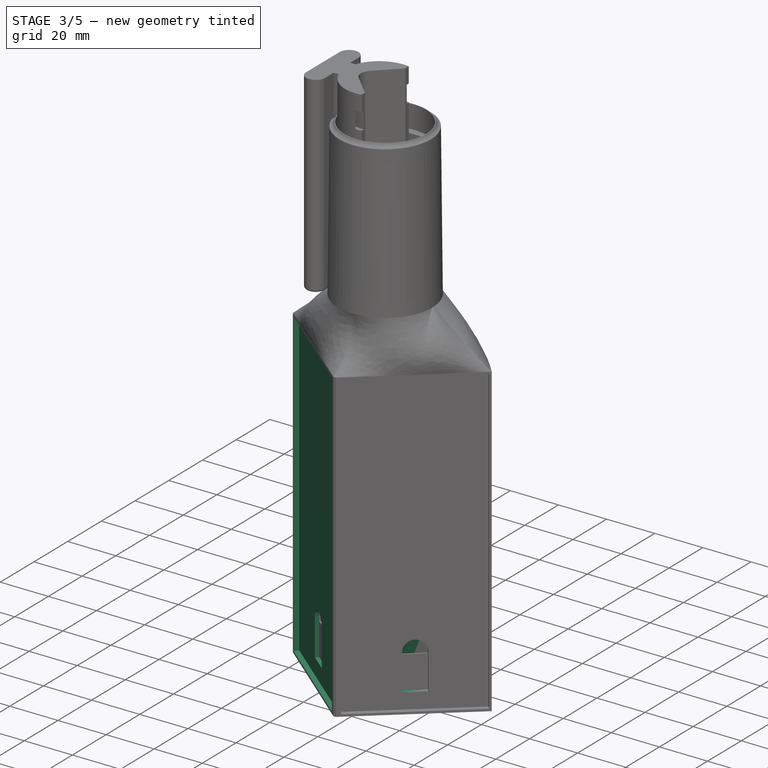
[diagram: stage 3 of 5 — iso view after this stage's code; geometry added in this stage tinted green]
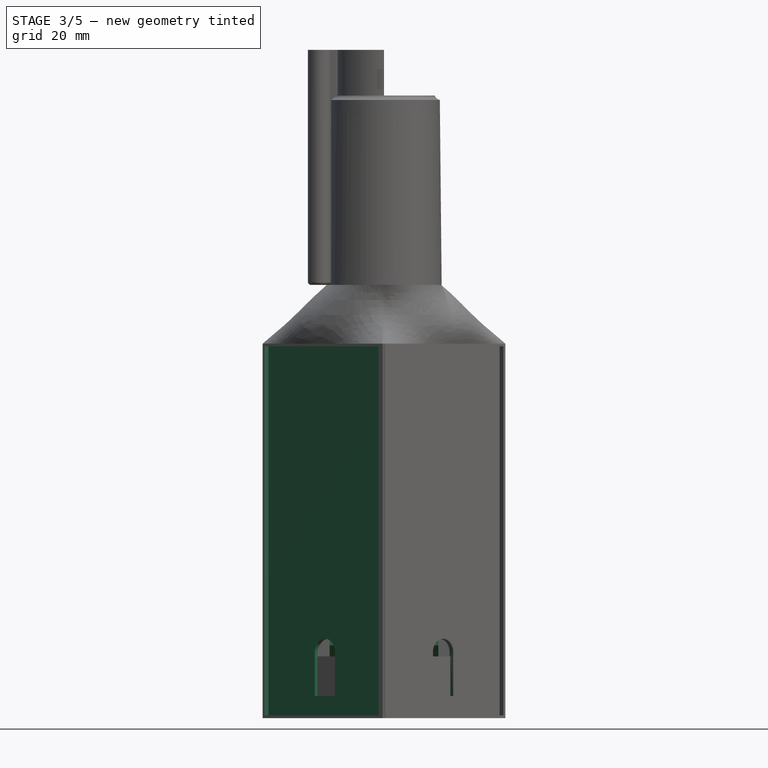
[diagram: stage 3 of 5 — front view after this stage's code; geometry added in this stage tinted green]
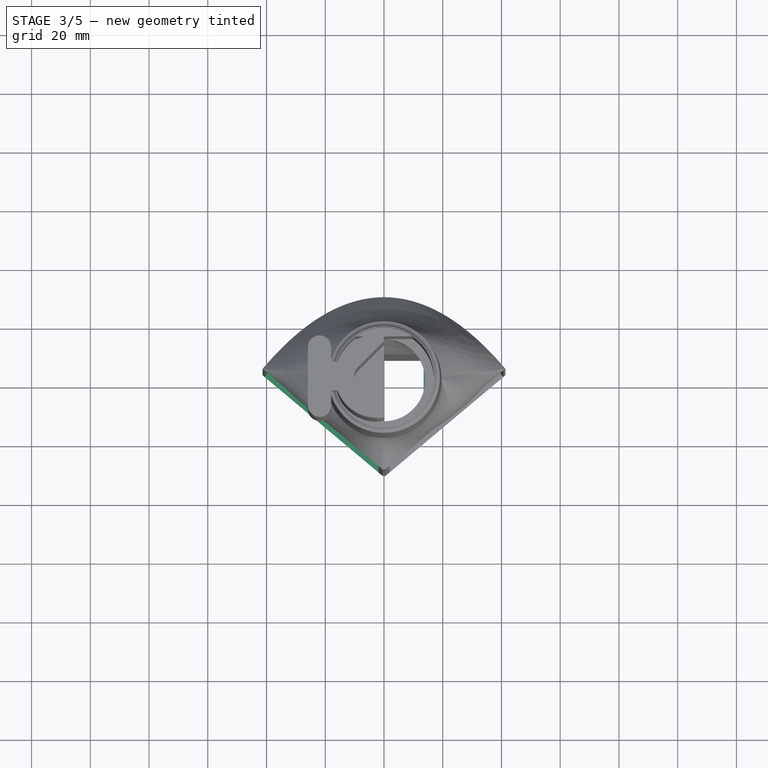
[diagram: stage 3 of 5 — top view after this stage's code; geometry added in this stage tinted green]
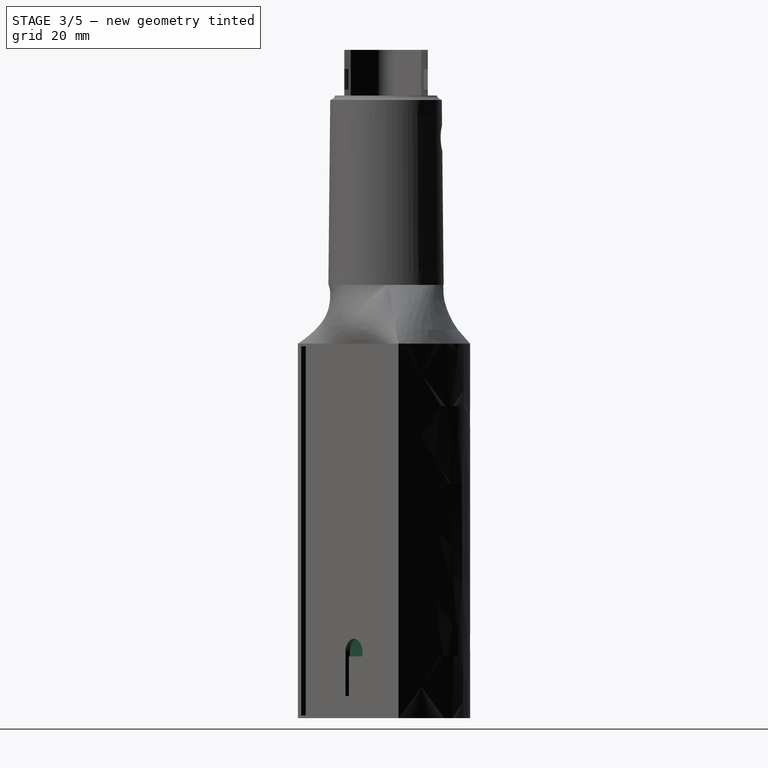
[diagram: stage 3 of 5 — right view after this stage's code; geometry added in this stage tinted green]
FEATURE [Sketcher::SketchObject] Sketch196
  ArcFitTolerance = 1e-06
  AttachmentSupport = -> [Pocket067]
  ExternalGeometry = -> [Sketch188,Pocket067]
  ExternalTypes = [0]
  FullyConstrained = true
  MakeInternals = false
  MapMode = 5
  Placement = pos=(-14.9787,-17.8509,4e-15) rot=(0.889126,-0.323616,-0.323616;1.68804rad)
  _ExternalGeoVersion = 0
  sketch-geometry (4):
    g0: LineSegment StartX=17.1006 StartY=-20.9 StartZ=0 EndX=-33.4994 EndY=-20.9 EndZ=0
    g1: LineSegment StartX=-33.4994 StartY=-20.9 StartZ=0 EndX=-33.4994 EndY=-146.6 EndZ=0
    g2: LineSegment StartX=-33.4994 StartY=-146.6 StartZ=0 EndX=17.1006 EndY=-146.6 EndZ=0
    g3: LineSegment StartX=17.1006 StartY=-146.6 StartZ=0 EndX=17.1006 EndY=-20.9 EndZ=0
  constraints (12):
    c: Coincident(g0,g1)
    c: Coincident(g1,g2)
    c: Coincident(g2,g3)
    c: Coincident(g3,g0)
    c: Horizontal(g0)
    c: Horizontal(g2)
    c: Vertical(g1)
    c: Vertical(g3)
    c: DistanceY(g0,g-3) = 0.9
    c: DistanceX(g0,g-3) = 1.8
    c: DistanceX(g2,g2) = 50.6
    c: DistanceY(g1,g1) = 125.7
FEATURE [PartDesign::Pocket] Pocket071  label="Solar-Cell-2-Pocket001"
  BaseFeature = -> Pocket067
  Direction = (0.642788,0.766044,0)
  Length = 2
  Length2 = 5
  Placement = pos=(0,0,0) rot=(1,0,0;1.5708rad)
  Profile = -> Sketch196
  ReferenceAxis = -> Sketch196 [N_Axis]
  SideType = 0
  Suppressed = false
  Type = 0
  Type2 = 0
FEATURE [PartDesign::Pad] Pad010  label="PCB rails-Pad004"
  BaseFeature = -> Pocket071
  Direction = (0,0,1)
  Length = 100
  Length2 = 10
  Placement = pos=(0,0,0) rot=(1,0,0;1.5708rad)
  Profile = -> Sketch197
  ReferenceAxis = -> Sketch197 [N_Axis]
  SideType = 0
  Suppressed = false
  Type = 0
  Type2 = 0
FEATURE [Sketcher::SketchObject] Sketch198
  ArcFitTolerance = 1e-06
  AttachmentSupport = -> [Pad010]
  ExternalGeometry = -> [Pad010]
  ExternalTypes = [0]
  FullyConstrained = true
  MakeInternals = false
  MapMode = 5
  Placement = pos=(-13.6931,-16.3188,-3.4e-15) rot=(0.889126,-0.323616,-0.323616;1.68804rad)
  _ExternalGeoVersion = 0
  sketch-geometry (7):
    g0: LineSegment [constr] StartX=-8.39939 StartY=-147.5 StartZ=0 EndX=-8.39939 EndY=-132.5 EndZ=0
    g1: LineSegment StartX=-12.8994 StartY=-140 StartZ=0 EndX=-3.89939 EndY=-140 EndZ=0
    g2: LineSegment StartX=-3.89939 StartY=-140 StartZ=0 EndX=-3.89939 EndY=-125 EndZ=0
    g3: LineSegment [constr] StartX=-3.89939 StartY=-125 StartZ=0 EndX=-12.8994 EndY=-125 EndZ=0
    g4: LineSegment StartX=-12.8994 StartY=-125 StartZ=0 EndX=-12.8994 EndY=-140 EndZ=0
    g5: GeomPoint [constr] X=-8.39939 Y=-132.5 Z=0
    g6: ArcOfCircle CenterX=-8.39939 CenterY=-125 CenterZ=0 NormalX=0 NormalY=0 NormalZ=1 AngleXU=0 Radius=4.5 StartAngle=-1.8e-15 EndAngle=3.14159
  constraints (19):
    c: Vertical(g0)
    c: Coincident(g1,g2)
    c: Coincident(g2,g3)
    c: Coincident(g3,g4)
    c: Coincident(g4,g1)
    c: Horizontal(g1)
    c: Horizontal(g3)
    c: Vertical(g2)
    c: Vertical(g4)
    c: Symmetric(g3,g1,g5)
    c: Distance(g2,g4) = 9
    c: Distance(g1,g3) = 15
    c: Coincident(g5,g0)
    c: DistanceY(g0,g0) = 15
    c: Coincident(g6,g3)
    c: Coincident(g6,g2)
    c: PointOnObject(g6,g3)
    c: DistanceX(g-3,g0) = 26
    c: PointOnObject(g0,g-3)
FEATURE [PartDesign::Pocket] Pocket072  label="Cell-2-Power-Points-Pocket001"
  BaseFeature = -> Pad010
  Direction = (0.642788,0.766044,2e-16)
  Length = 1.5
  Length2 = 5
  Placement = pos=(0,0,0) rot=(1,0,0;1.5708rad)
  Profile = -> Sketch198
  ReferenceAxis = -> Sketch198 [N_Axis]
  SideType = 0
  Suppressed = false
  Type = 0
  Type2 = 0
FEATURE [Sketcher::SketchObject] Sketch199
  ArcFitTolerance = 1e-06
  AttachmentSupport = -> [Pocket072]
  ExternalGeometry = -> [Pocket072]
  ExternalTypes = [0]
  FullyConstrained = true
  MakeInternals = false
  MapMode = 5
  Placement = pos=(-12.7289,-15.1698,-3.6e-15) rot=(0.889126,-0.323616,-0.323616;1.68804rad)
  _ExternalGeoVersion = 0
  sketch-geometry (5):
    g0: ArcOfCircle CenterX=-8.39939 CenterY=-125 CenterZ=0 NormalX=0 NormalY=0 NormalZ=1 AngleXU=0 Radius=4.5 StartAngle=-2.7e-15 EndAngle=3.14159
    g1: LineSegment [constr] StartX=-12.8994 StartY=-125 StartZ=0 EndX=-3.89939 EndY=-125 EndZ=0
    g2: LineSegment StartX=-12.8994 StartY=-125 StartZ=0 EndX=-12.8994 EndY=-126.5 EndZ=0
    g3: LineSegment StartX=-12.8994 StartY=-126.5 StartZ=0 EndX=-3.89939 EndY=-126.5 EndZ=0
    g4: LineSegment StartX=-3.89939 StartY=-126.5 StartZ=0 EndX=-3.89939 EndY=-125 EndZ=0
  constraints (13):
    c: Coincident(g0,g-3)
    c: Coincident(g0,g-3)
    c: Coincident(g1,g0)
    c: Coincident(g1,g0)
    c: Horizontal(g1)
    c: Coincident(g2,g0)
    c: Vertical(g2)
    c: Coincident(g3,g2)
    c: Horizontal(g3)
    c: Coincident(g4,g3)
    c: Coincident(g4,g0)
    c: Vertical(g4)
    c: DistanceY(g2,g2) = 1.5
FEATURE [PartDesign::Pocket] Pocket073  label="Cell-2-Wire-Passthrough-Pocket001"
  BaseFeature = -> Pocket072
  Direction = (0.642788,0.766044,2e-16)
  Length = 0.6
  Length2 = 5
  Placement = pos=(0,0,0) rot=(1,0,0;1.5708rad)
  Profile = -> Sketch199
  ReferenceAxis = -> Sketch199 [N_Axis]
  SideType = 0
  Suppressed = false
  Type = 0
  Type2 = 0
FEATURE [Sketcher::SketchObject] Sketch200
  ArcFitTolerance = 1e-06
  AttachmentSupport = -> [Pocket073]
  ExternalGeometry = -> [Pocket073]
  ExternalTypes = [0]
  FullyConstrained = true
  MakeInternals = false
  MapMode = 5
  Placement = pos=(13.6931,-16.3188,-9.2e-15) rot=(0.889126,0.323616,0.323616;1.68804rad)
  _ExternalGeoVersion = 0
  sketch-geometry (7):
    g0: LineSegment [constr] StartX=8.39939 StartY=-147.5 StartZ=0 EndX=8.39939 EndY=-132.5 EndZ=0
    g1: LineSegment StartX=3.89939 StartY=-140 StartZ=0 EndX=12.8994 EndY=-140 EndZ=0
    g2: LineSegment StartX=12.8994 StartY=-140 StartZ=0 EndX=12.8994 EndY=-125 EndZ=0
    g3: LineSegment [constr] StartX=12.8994 StartY=-125 StartZ=0 EndX=3.89939 EndY=-125 EndZ=0
    g4: LineSegment StartX=3.89939 StartY=-125 StartZ=0 EndX=3.89939 EndY=-140 EndZ=0
    g5: GeomPoint [constr] X=8.39939 Y=-132.5 Z=0
    g6: ArcOfCircle CenterX=8.39939 CenterY=-125 CenterZ=0 NormalX=0 NormalY=0 NormalZ=1 AngleXU=0 Radius=4.5 StartAngle=1e-15 EndAngle=3.14159
  constraints (19):
    c: Distance(g0) = 15
    c: Vertical(g0)
    c: Coincident(g1,g2)
    c: Coincident(g2,g3)
    c: Coincident(g3,g4)
    c: Coincident(g4,g1)
    c: Horizontal(g1)
    c: Horizontal(g3)
    c: Vertical(g2)
    c: Vertical(g4)
    c: Symmetric(g3,g1,g5)
    c: Distance(g2,g4) = 9
    c: Distance(g1,g3) = 15
    c: Coincident(g5,g0)
    c: Coincident(g6,g2)
    c: Coincident(g6,g3)
    c: PointOnObject(g0,g-3)
    c: DistanceX(g0,g-3) = 26
    c: PointOnObject(g6,g3)
FEATURE [PartDesign::Pocket] Pocket074  label="Cell-1-Power-Points-Pocket002"
  BaseFeature = -> Pocket073
  Direction = (-0.642788,0.766044,-1e-16)
  Length = 1.5
  Length2 = 5
  Placement = pos=(0,0,0) rot=(1,0,0;1.5708rad)
  Profile = -> Sketch200
  ReferenceAxis = -> Sketch200 [N_Axis]
  SideType = 0
  Suppressed = false
  Type = 0
  Type2 = 0
FEATURE [Sketcher::SketchObject] Sketch201
  ArcFitTolerance = 1e-06
  AttachmentSupport = -> [Pocket074]
  ExternalGeometry = -> [Pocket074]
  ExternalTypes = [0]
  FullyConstrained = true
  MakeInternals = false
  MapMode = 5
  Placement = pos=(12.7289,-15.1698,0) rot=(0.889126,0.323616,0.323616;1.68804rad)
  _ExternalGeoVersion = 0
  sketch-geometry (5):
    g0: ArcOfCircle CenterX=8.39939 CenterY=-125 CenterZ=0 NormalX=0 NormalY=0 NormalZ=1 AngleXU=0 Radius=4.5 StartAngle=4e-16 EndAngle=3.14159
    g1: LineSegment [constr] StartX=3.89939 StartY=-125 StartZ=0 EndX=12.8994 EndY=-125 EndZ=0
    g2: LineSegment StartX=3.89939 StartY=-125 StartZ=0 EndX=3.89939 EndY=-126.5 EndZ=0
    g3: LineSegment StartX=3.89939 StartY=-126.5 StartZ=0 EndX=12.8994 EndY=-126.5 EndZ=0
    g4: LineSegment StartX=12.8994 StartY=-125 StartZ=0 EndX=12.8994 EndY=-126.5 EndZ=0
  constraints (13):
    c: Coincident(g0,g-3)
    c: Coincident(g0,g-3)
    c: Coincident(g1,g0)
    c: Coincident(g1,g0)
    c: Horizontal(g1)
    c: Coincident(g2,g0)
    c: Vertical(g2)
    c: Coincident(g3,g2)
    c: Horizontal(g3)
    c: Coincident(g4,g0)
    c: Coincident(g4,g3)
    c: Vertical(g4)
    c: DistanceY(g2,g2) = 1.5
FEATURE [PartDesign::Pocket] Pocket075  label="Cell-1-Wire-Passthrough-Pocket001"
  BaseFeature = -> Pocket074
  Direction = (-0.642788,0.766044,-1e-16)
  Length = 0.6
  Length2 = 5
  Placement = pos=(0,0,0) rot=(1,0,0;1.5708rad)
  Profile = -> Sketch201
  ReferenceAxis = -> Sketch201 [N_Axis]
  SideType = 0
  Suppressed = false
  Type = 0
  Type2 = 0
FEATURE [PartDesign::Pocket] Pocket076  label="PCB rails-Arch001"
  BaseFeature = -> Pocket075
  Direction = (-1,0,0)
  Length = 31
  Length2 = 5
  Placement = pos=(0,0,0) rot=(1,0,0;1.5708rad)
  Profile = -> Sketch202
  ReferenceAxis = -> Sketch202 [N_Axis]
  SideType = 2
  Suppressed = false
  Type = 0
  Type2 = 0
FEATURE [PartDesign::Pocket] Pocket077  label="PCB rails clearing001"
  BaseFeature = -> Pocket076
  Direction = (-1,0,0)
  Length = 37
  Length2 = 5
  Placement = pos=(0,0,0) rot=(1,0,0;1.5708rad)
  Profile = -> Sketch203
  ReferenceAxis = -> Sketch203 [N_Axis]
  SideType = 2
  Suppressed = false
  Type = 0
  Type2 = 0
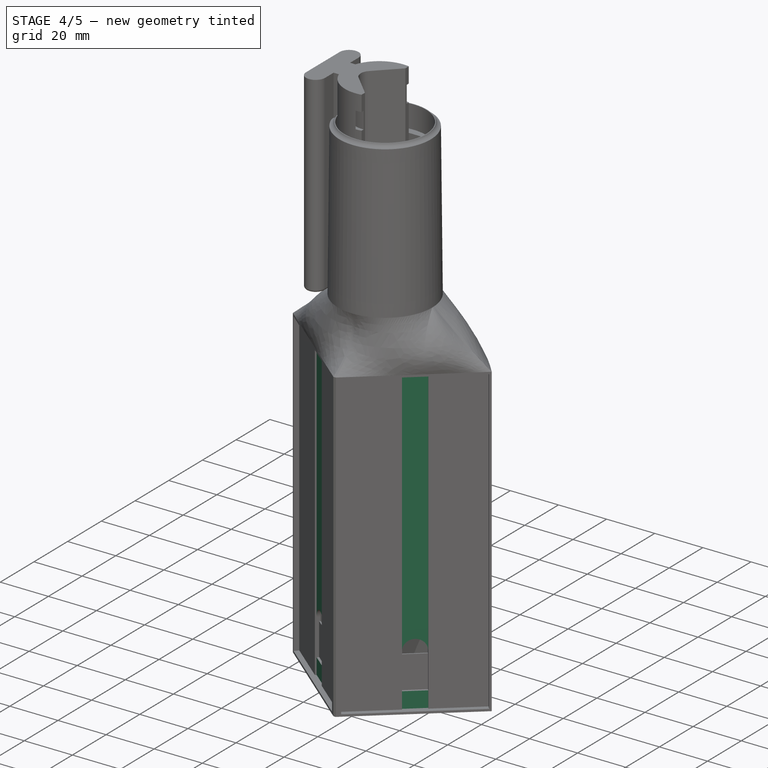
[diagram: stage 4 of 5 — iso view after this stage's code; geometry added in this stage tinted green]
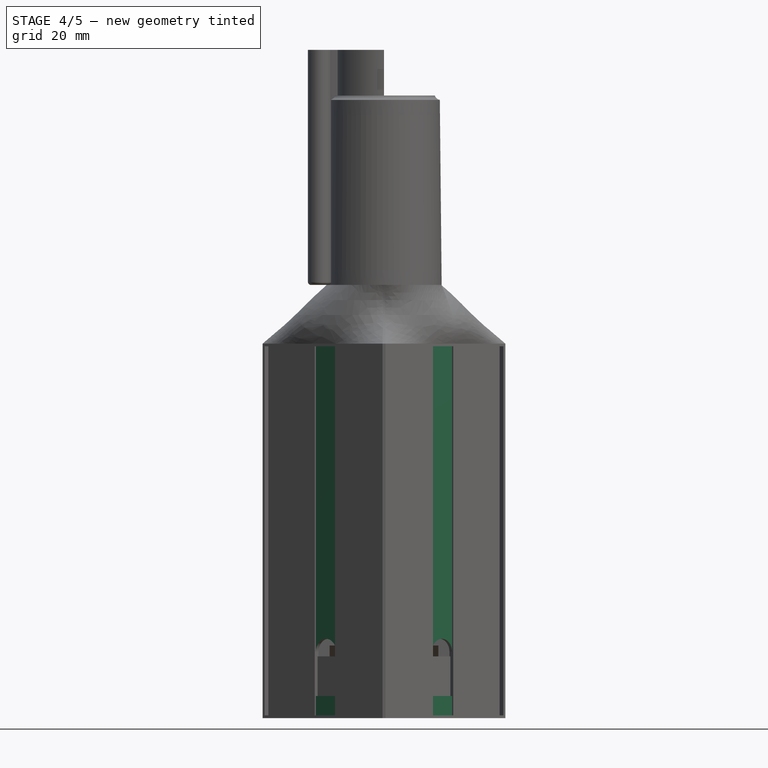
[diagram: stage 4 of 5 — front view after this stage's code; geometry added in this stage tinted green]
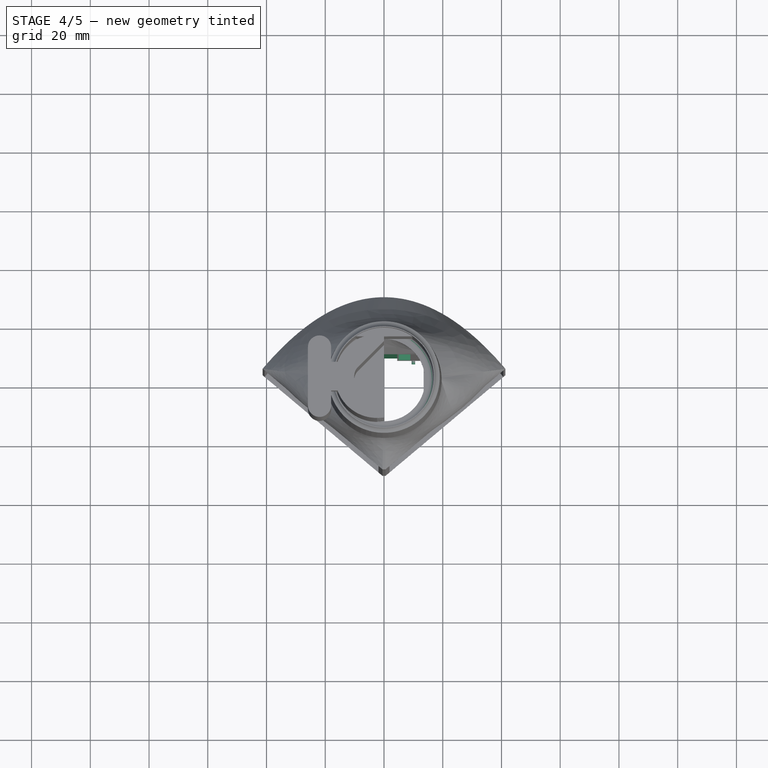
[diagram: stage 4 of 5 — top view after this stage's code; geometry added in this stage tinted green]
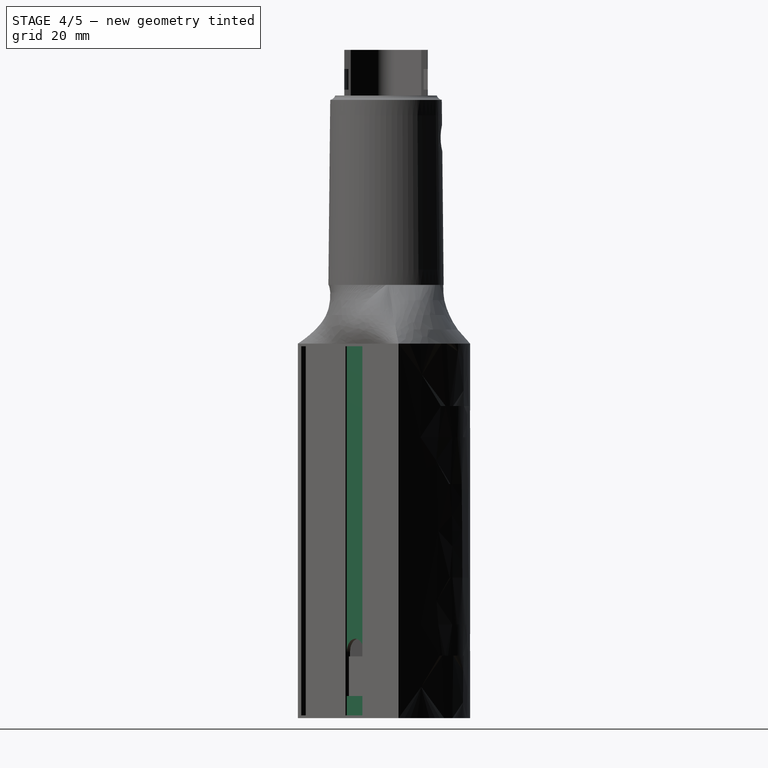
[diagram: stage 4 of 5 — right view after this stage's code; geometry added in this stage tinted green]
FEATURE [PartDesign::Pocket] Pocket078  label="Bottom-screw-Holes001"
  BaseFeature = -> Pocket077
  Direction = (0,1e-16,1)
  Length = 10
  Length2 = 5
  Placement = pos=(0,0,0) rot=(1,0,0;1.5708rad)
  Profile = -> Sketch204
  ReferenceAxis = -> Sketch204 [N_Axis]
  SideType = 0
  Suppressed = false
  Type = 0
  Type2 = 0
FEATURE [Sketcher::SketchObject] Sketch205
  ArcFitTolerance = 1e-06
  AttachmentSupport = -> [Pocket078]
  ExternalGeometry = -> [Pocket078]
  ExternalTypes = [0]
  FullyConstrained = true
  MakeInternals = false
  MapMode = 5
  Placement = pos=(0,9.18583,-2e-15) rot=(1,0,0;1.5708rad)
  _ExternalGeoVersion = 0
  sketch-geometry (5):
    g0: ArcOfCircle CenterX=10 CenterY=-143.5 CenterZ=0 NormalX=0 NormalY=0 NormalZ=1 AngleXU=0 Radius=0.6 StartAngle=1.065e-13 EndAngle=3.14159
    g1: LineSegment StartX=9.4 StartY=-147.5 StartZ=0 EndX=10.6 EndY=-147.5 EndZ=0
    g2: LineSegment StartX=9.4 StartY=-147.5 StartZ=0 EndX=9.4 EndY=-143.5 EndZ=0
    g3: LineSegment StartX=10.6 StartY=-147.5 StartZ=0 EndX=10.6 EndY=-143.5 EndZ=0
    g4: LineSegment [constr] StartX=9.4 StartY=-143.5 StartZ=0 EndX=10.6 EndY=-143.5 EndZ=0
  constraints (15):
    c: Radius(g0) = 0.6
    c: Distance(g0,g-2) = 10
    c: Coincident(g2,g1)
    c: Coincident(g2,g0)
    c: Coincident(g3,g1)
    c: Coincident(g3,g0)
    c: Vertical(g3)
    c: Vertical(g2)
    c: Horizontal(g1)
    c: Distance(g2,g2) = 4
    c: PointOnObject(g1,g-3)
    c: Coincident(g4,g0)
    c: Coincident(g4,g0)
    c: Horizontal(g4)
    c: PointOnObject(g0,g4)
FEATURE [PartDesign::Pad] Pad011  label="PCB-Bottom-Stop001"
  BaseFeature = -> Pocket078
  Direction = (0,-1,2e-16)
  Length = 1.2
  Length2 = 10
  Placement = pos=(0,0,0) rot=(1,0,0;1.5708rad)
  Profile = -> Sketch205
  ReferenceAxis = -> Sketch205 [N_Axis]
  SideType = 0
  Suppressed = false
  Type = 0
  Type2 = 0
FEATURE [PartDesign::Fillet] Fillet001
  Base = -> Pad011 [Edge2]
  BaseFeature = -> Pad011
  Placement = pos=(0,0,0) rot=(1,0,0;1.5708rad)
  Radius = 2
  SupportTransform = false
  Suppressed = false
  UseAllEdges = false
FEATURE [Sketcher::SketchObject] Sketch207
  ArcFitTolerance = 1e-06
  AttachmentSupport = -> [Fillet001]
  ExternalGeometry = -> [Sketch196,Sketch198]
  ExternalTypes = [0]
  FullyConstrained = true
  MakeInternals = false
  MapMode = 5
  Placement = pos=(-13.6931,-16.3188,-3.4e-15) rot=(0.889126,-0.323616,-0.323616;1.68804rad)
  _ExternalGeoVersion = 0
  sketch-geometry (4):
    g0: LineSegment StartX=-12.8994 StartY=-20.9 StartZ=0 EndX=-12.8994 EndY=-146.6 EndZ=0
    g1: LineSegment StartX=-12.8994 StartY=-146.6 StartZ=0 EndX=-3.89939 EndY=-146.6 EndZ=0
    g2: LineSegment StartX=-3.89939 StartY=-146.6 StartZ=0 EndX=-3.89939 EndY=-20.9 EndZ=0
    g3: LineSegment StartX=-3.89939 StartY=-20.9 StartZ=0 EndX=-12.8994 EndY=-20.9 EndZ=0
  constraints (12):
    c: Coincident(g0,g1)
    c: Coincident(g1,g2)
    c: Coincident(g2,g3)
    c: Coincident(g3,g0)
    c: Vertical(g0)
    c: Vertical(g2)
    c: Horizontal(g1)
    c: Horizontal(g3)
    c: PointOnObject(g0,g-3)
    c: PointOnObject(g1,g-6)
    c: PointOnObject(g-4,g0)
    c: PointOnObject(g-5,g2)
FEATURE [PartDesign::Pocket] Pocket079  label="Solar-Cell-2-Middle-Band001"
  BaseFeature = -> Fillet001
  Direction = (0.642788,0.766044,2e-16)
  Length = 0.6
  Length2 = 5
  Placement = pos=(0,0,0) rot=(1,0,0;1.5708rad)
  Profile = -> Sketch207
  ReferenceAxis = -> Sketch207 [N_Axis]
  SideType = 0
  Suppressed = false
  Type = 0
  Type2 = 0
FEATURE [Sketcher::SketchObject] Sketch208
  ArcFitTolerance = 1e-06
  AttachmentSupport = -> [Pocket079]
  ExternalGeometry = -> [Sketch195,Sketch200]
  ExternalTypes = [0]
  FullyConstrained = true
  MakeInternals = false
  MapMode = 5
  Placement = pos=(13.6931,-16.3188,-9.2e-15) rot=(0.889126,0.323616,0.323616;1.68804rad)
  _ExternalGeoVersion = 0
  sketch-geometry (4):
    g0: LineSegment StartX=3.89939 StartY=-146.6 StartZ=0 EndX=12.8994 EndY=-146.6 EndZ=0
    g1: LineSegment StartX=12.8994 StartY=-146.6 StartZ=0 EndX=12.8994 EndY=-20.9 EndZ=0
    g2: LineSegment StartX=12.8994 StartY=-20.9 StartZ=0 EndX=3.89939 EndY=-20.9 EndZ=0
    g3: LineSegment StartX=3.89939 StartY=-20.9 StartZ=0 EndX=3.89939 EndY=-146.6 EndZ=0
  constraints (12):
    c: Coincident(g0,g1)
    c: Coincident(g1,g2)
    c: Coincident(g2,g3)
    c: Coincident(g3,g0)
    c: Horizontal(g0)
    c: Horizontal(g2)
    c: Vertical(g1)
    c: Vertical(g3)
    c: PointOnObject(g0,g-4)
    c: PointOnObject(g1,g-3)
    c: PointOnObject(g-6,g3)
    c: PointOnObject(g-5,g1)
FEATURE [PartDesign::Pocket] Pocket080  label="Solar-Cell-1-Middle-Band002"
  BaseFeature = -> Pocket079
  Direction = (-0.642788,0.766044,-1e-16)
  Length = 0.6
  Length2 = 5
  Placement = pos=(0,0,0) rot=(1,0,0;1.5708rad)
  Profile = -> Sketch208
  ReferenceAxis = -> Sketch208 [N_Axis]
  SideType = 0
  Suppressed = false
  Type = 0
  Type2 = 0
FEATURE [Sketcher::SketchObject] Sketch209
  ArcFitTolerance = 1e-06
  AttachmentSupport = -> [Pocket080]
  ExternalGeometry = -> [Pocket080,Sketch194]
  ExternalTypes = [0]
  FullyConstrained = true
  MakeInternals = false
  MapMode = 5
  Placement = pos=(0,9.18583,-2e-15) rot=(1,0,0;1.5708rad)
  _ExternalGeoVersion = 0
  sketch-geometry (5):
    g0: LineSegment StartX=-4.5 StartY=-147.5 StartZ=0 EndX=4.5 EndY=-147.5 EndZ=0
    g1: LineSegment StartX=4.5 StartY=-147.5 StartZ=0 EndX=4.5 EndY=-20 EndZ=0
    g2: LineSegment StartX=4.5 StartY=-20 StartZ=0 EndX=-4.5 EndY=-20 EndZ=0
    g3: LineSegment StartX=-4.5 StartY=-20 StartZ=0 EndX=-4.5 EndY=-147.5 EndZ=0
    g4: GeomPoint [constr] X=0 Y=-83.75 Z=0
  constraints (13):
    c: Coincident(g0,g1)
    c: Coincident(g1,g2)
    c: Coincident(g2,g3)
    c: Coincident(g3,g0)
    c: Horizontal(g0)
    c: Horizontal(g2)
    c: Vertical(g1)
    c: Vertical(g3)
    c: Symmetric(g2,g0,g4)
    c: PointOnObject(g4,g-2)
    c: PointOnObject(g0,g-3)
    c: PointOnObject(g1,g-4)
    c: DistanceX(g0,g0) = 9
FEATURE [PartDesign::Pocket] Pocket081  label="PCB-MIddle-Band001"
  BaseFeature = -> Pocket080
  Direction = (0,1,-2e-16)
  Length = 0.8
  Length2 = 5
  Placement = pos=(0,0,0) rot=(1,0,0;1.5708rad)
  Profile = -> Sketch209
  ReferenceAxis = -> Sketch209 [N_Axis]
  SideType = 0
  Suppressed = false
  Type = 0
  Type2 = 0
FEATURE [Sketcher::SketchObject] Sketch210
  ArcFitTolerance = 1e-06
  AttachmentSupport = -> [Pocket080]
  ExternalGeometry = -> [Pocket080]
  ExternalTypes = [0]
  FullyConstrained = true
  MakeInternals = false
  MapMode = 5
  Placement = pos=(0,9.18583,-2e-15) rot=(1,0,0;1.5708rad)
  _ExternalGeoVersion = 0
  sketch-geometry (6):
    g0: LineSegment [constr] StartX=0 StartY=-20.3 StartZ=0 EndX=-7 EndY=-20.3 EndZ=0
    g1: LineSegment [constr] StartX=0 StartY=-20.3 StartZ=0 EndX=7 EndY=-20.3 EndZ=0
    g2: ArcOfCircle CenterX=-7 CenterY=-20.3 CenterZ=0 NormalX=0 NormalY=0 NormalZ=1 AngleXU=0 Radius=2 StartAngle=3.14159 EndAngle=6.28319
    g3: ArcOfCircle CenterX=7 CenterY=-20.3 CenterZ=0 NormalX=0 NormalY=0 NormalZ=1 AngleXU=0 Radius=2 StartAngle=3.14159 EndAngle=6.28319
    g4: LineSegment StartX=-9 StartY=-20.3 StartZ=0 EndX=-5 EndY=-20.3 EndZ=0
    g5: LineSegment StartX=5 StartY=-20.3 StartZ=0 EndX=9 EndY=-20.3 EndZ=0
  constraints (18):
    c: PointOnObject(g0,g-2)
    c: Horizontal(g0)
    c: Coincident(g1,g0)
    c: Symmetric(g1,g0,g-2)
    c: DistanceX(g0,g1) = 14
    c: Distance(g-3,g1) = 127.2
    c: Coincident(g2,g0)
    c: PointOnObject(g2,g0)
    c: Coincident(g3,g1)
    c: PointOnObject(g3,g1)
    c: Radius(g2) = 2
    c: Equal(g2,g3)
    c: Coincident(g4,g2)
    c: Coincident(g4,g2)
    c: Horizontal(g4)
    c: Coincident(g5,g3)
    c: Coincident(g5,g3)
    c: Horizontal(g5)
FEATURE [PartDesign::Pad] Pad012  label="PCB-Upper-Stop001"
  BaseFeature = -> Pocket081
  Direction = (0,-1,2e-16)
  Length = 2
  Length2 = 10
  Placement = pos=(0,0,0) rot=(1,0,0;1.5708rad)
  Profile = -> Sketch210
  ReferenceAxis = -> Sketch210 [N_Axis]
  SideType = 0
  Suppressed = false
  Type = 0
  Type2 = 0
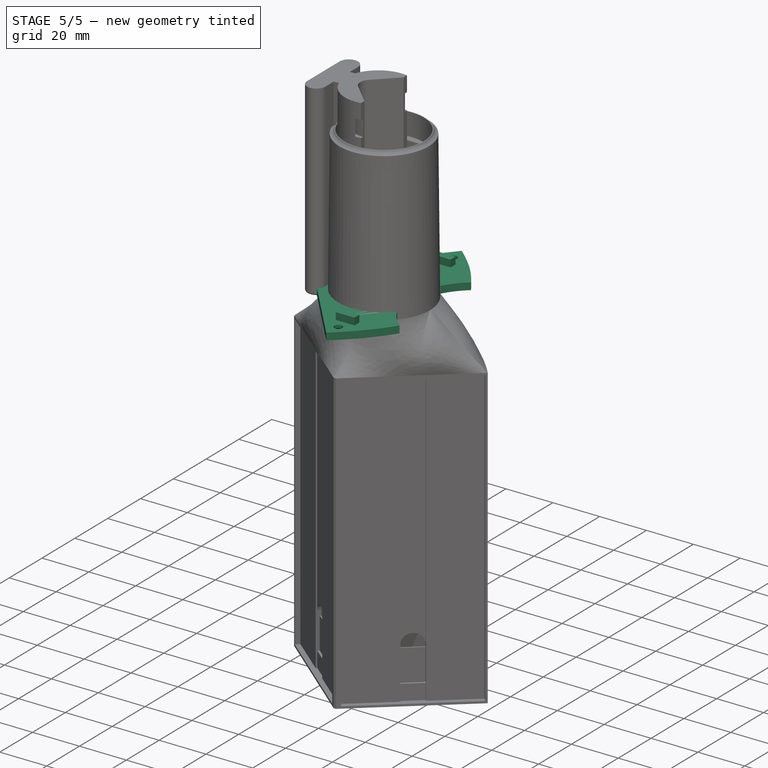
[diagram: stage 5 of 5 — iso view after this stage's code; geometry added in this stage tinted green]
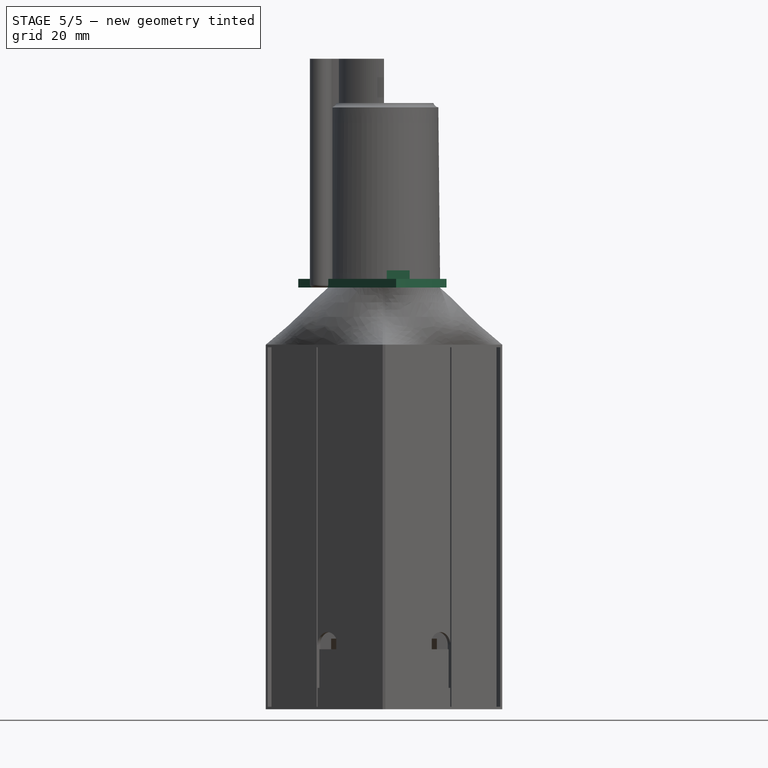
[diagram: stage 5 of 5 — front view after this stage's code; geometry added in this stage tinted green]
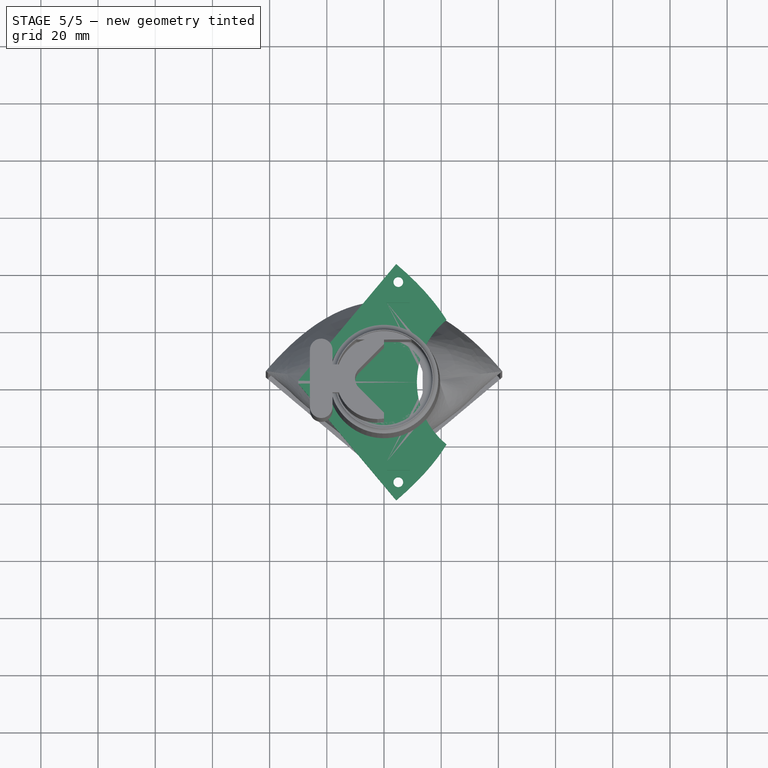
[diagram: stage 5 of 5 — top view after this stage's code; geometry added in this stage tinted green]
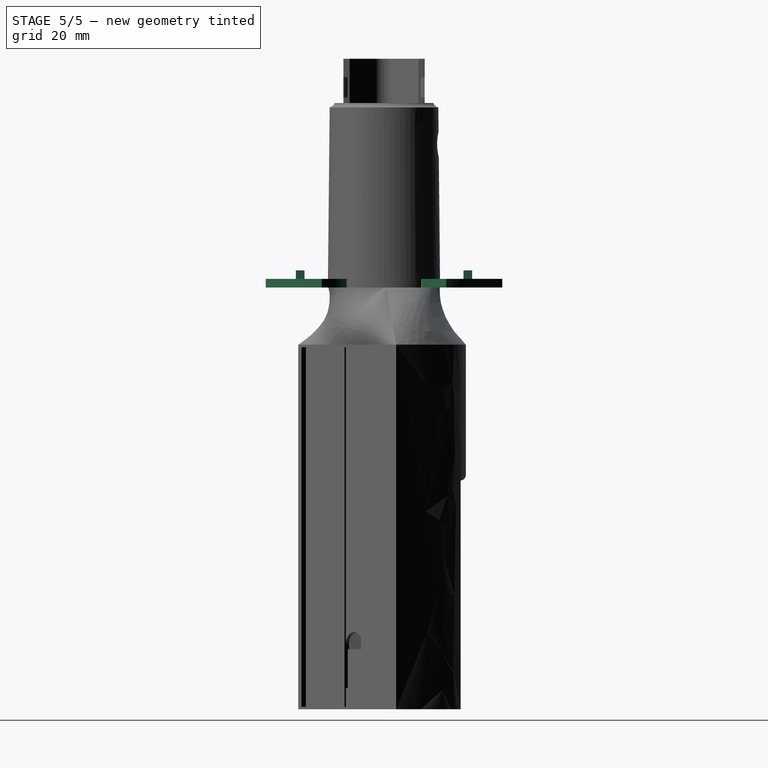
[diagram: stage 5 of 5 — right view after this stage's code; geometry added in this stage tinted green]
FEATURE [Sketcher::SketchObject] Sketch173
  ArcFitTolerance = 1e-06
  AttachmentOffset = pos=(0,0,0) rot=(0,0,1;-1.5708rad)
  AttachmentSupport = -> [XY_Plane]
  ExternalTypes = [0]
  FullyConstrained = true
  MakeInternals = false
  MapMode = 5
  Placement = pos=(0,0,0) rot=(0,0,1;4.71239rad)
  _ExternalGeoVersion = 0
  sketch-geometry (23):
    g0: LineSegment [constr] StartX=0 StartY=20 StartZ=0 EndX=30 EndY=20 EndZ=0
    g1: LineSegment [constr] StartX=0 StartY=20 StartZ=0 EndX=-30 EndY=20 EndZ=0
    g2: ArcOfCircle [constr] CenterX=-30 CenterY=0 CenterZ=0 NormalX=0 NormalY=0 NormalZ=1 AngleXU=0 Radius=20 StartAngle=1.5708 EndAngle=1.74533
    g3: ArcOfCircle [constr] CenterX=30 CenterY=0 CenterZ=0 NormalX=0 NormalY=0 NormalZ=1 AngleXU=0 Radius=20 StartAngle=1.22173 EndAngle=1.5708
    g4: LineSegment [constr] StartX=-30 StartY=20 StartZ=0 EndX=-30 EndY=0 EndZ=0
    g5: LineSegment [constr] StartX=-30 StartY=0 StartZ=0 EndX=-33.473 EndY=19.6962 EndZ=0
    g6: LineSegment [constr] StartX=30 StartY=20 StartZ=0 EndX=30 EndY=0 EndZ=0
    g7: LineSegment [constr] StartX=30 StartY=0 StartZ=0 EndX=36.8404 EndY=18.7939 EndZ=0
    g8: LineSegment [constr] StartX=-30 StartY=0 StartZ=0 EndX=0 EndY=0 EndZ=0
    g9: LineSegment [constr] StartX=0 StartY=0 StartZ=0 EndX=30 EndY=0 EndZ=0
    g10: LineSegment [constr] StartX=0 StartY=0 StartZ=0 EndX=0 EndY=-30 EndZ=0
    g11: LineSegment [constr] StartX=0 StartY=0 StartZ=0 EndX=0 EndY=20 EndZ=0
    g12: LineSegment StartX=0.5 StartY=-30 StartZ=0 EndX=41.3302 EndY=4.26058 EndZ=0
    g13: LineSegment StartX=-41.3302 StartY=4.26058 StartZ=0 EndX=-0.5 EndY=-30 EndZ=0
    g14: Circle [constr] CenterX=-41.3302 CenterY=4.26058 CenterZ=0 NormalX=0 NormalY=0 NormalZ=1 AngleXU=0 Radius=1
    g15: Circle [constr] CenterX=0 CenterY=53 CenterZ=0 NormalX=0 NormalY=0 NormalZ=1 AngleXU=0 Radius=1
    g16: Circle [constr] CenterX=41.3302 CenterY=4.26058 CenterZ=0 NormalX=0 NormalY=0 NormalZ=1 AngleXU=0 Radius=1
    g17: BSplineCurve PolesCount=3 KnotsCount=2 Degree=2 IsPeriodic=0
    g18: GeomPoint [constr] X=-41.3302 Y=4.26058 Z=0
    g19: GeomPoint [constr] X=41.3302 Y=4.26058 Z=0
    g20: LineSegment StartX=-0.5 StartY=-30 StartZ=0 EndX=0 EndY=-30 EndZ=0
    g21: LineSegment StartX=0 StartY=-30 StartZ=0 EndX=0.5 EndY=-30 EndZ=0
    g22: LineSegment [constr] StartX=-41.3302 StartY=4.26058 StartZ=0 EndX=41.3302 EndY=4.26058 EndZ=0
  constraints (58):
    c: PointOnObject(g0,g-2)
    c: Coincident(g1,g0)
    c: Horizontal(g1)
    c: Horizontal(g0)
    c: Coincident(g2,g1)
    c: Coincident(g3,g0)
    c: Coincident(g4,g1)
    c: Coincident(g4,g2)
    c: Vertical(g4)
    c: Coincident(g5,g2)
    c: Coincident(g5,g2)
    c: Coincident(g6,g0)
    c: Coincident(g6,g3)
    c: Coincident(g7,g3)
    c: Coincident(g7,g3)
    c: Vertical(g6)
    c: DistanceX(g1,g0) = 60
    c: PointOnObject(g2,g-1)
    c: Coincident(g8,g2)
    c: Coincident(g8,g-1)
    c: Coincident(g9,g8)
    c: Coincident(g9,g3)
    c: Equal(g9,g8)
    c: PointOnObject(g3,g-1)
    c: Angle(g7,g-1) = -1.22173
    c: Angle(g-1,g5) = -1.39626
    c: Coincident(g10,g8)
    c: Vertical(g10)
    c: Coincident(g11,g8)
    c: Coincident(g11,g0)
    c: DistanceY(g11,g11) = 20
    c: DistanceY(g10,g10) = 30
    c: Distance(g12,g12) = 53.3
    c: Equal(g13,g12)
    c: Weight(g14) = 1
    c: Equal(g14,g15)
    c: Equal(g14,g16)
    c: InternalAlignment(g14,g17)
    c: InternalAlignment(g15,g17)
    c: InternalAlignment(g16,g17)
    c: InternalAlignment(g18,g17)
    c: InternalAlignment(g19,g17)
    c: PointOnObject(g15,g-2)
    c: Coincident(g17,g12)
    c: Coincident(g17,g13)
    c: Angle(g12,g13) = 1.74533
    c: DistanceX(g13,g12) = 1
    c: Coincident(g20,g13)
    c: Coincident(g20,g10)
    c: Coincident(g21,g10)
    c: Coincident(g21,g12)
    c: Horizontal(g21)
    c: Horizontal(g20)
    c: Equal(g20,g21)
    c: Distance(g15,g-1) = 53
    c: Coincident(g22,g13)
    c: Coincident(g22,g12)
    c: Horizontal(g22)
FEATURE [PartDesign::Pad] Pad005
  Direction = (0,0,1)
  Length = 3
  Length2 = 10
  Profile = -> Sketch173
  ReferenceAxis = -> Sketch173 [N_Axis]
  SideType = 0
  Suppressed = false
  Type = 0
  Type2 = 0
FEATURE [Sketcher::SketchObject] Sketch174
  ArcFitTolerance = 1e-06
  AttachmentSupport = -> [Pad005]
  ExternalTypes = [0]
  FullyConstrained = true
  MakeInternals = false
  MapMode = 5
  Placement = pos=(0,0,0) rot=(1,0,0;3.14159rad)
  _ExternalGeoVersion = 0
  sketch-geometry (1):
    g0: Circle CenterX=39.5 CenterY=0 CenterZ=0 NormalX=0 NormalY=0 NormalZ=1 AngleXU=0 Radius=28
  constraints (3):
    c: Diameter(g0) = 56
    c: PointOnObject(g0,g-1)
    c: Distance(g0,g-2) = 39.5
FEATURE [PartDesign::Pocket] Pocket063
  BaseFeature = -> Pad005
  Direction = (0,0,1)
  Length = 5
  Length2 = 5
  Profile = -> Sketch174
  ReferenceAxis = -> Sketch174 [N_Axis]
  SideType = 0
  Suppressed = false
  Type = 0
  Type2 = 0
FEATURE [Sketcher::SketchObject] Sketch175
  ArcFitTolerance = 1e-06
  AttachmentSupport = -> [Pocket063]
  ExternalTypes = [0]
  FullyConstrained = true
  MakeInternals = false
  MapMode = 5
  Placement = pos=(0,0,0) rot=(1,0,0;3.14159rad)
  _ExternalGeoVersion = 0
  sketch-geometry (2):
    g0: Circle CenterX=5 CenterY=-35 CenterZ=0 NormalX=0 NormalY=0 NormalZ=1 AngleXU=0 Radius=1.5
    g1: Circle CenterX=5 CenterY=35 CenterZ=0 NormalX=0 NormalY=0 NormalZ=1 AngleXU=0 Radius=1.5
  constraints (6):
    c: Distance(g1,g-2) = 5
    c: Distance(g1,g-1) = 35
    c: Distance(g0,g-1) = 35
    c: DistanceX(g-1,g0) = 5
    c: Equal(g1,g0)
    c: Diameter(g1) = 3
FEATURE [PartDesign::Hole] Hole
  BaseFeature = -> Pocket063
  BaseProfileType = 6
  CustomThreadClearance = 0
  Depth = 25
  DepthType = 0
  Diameter = 3.4
  DrillForDepth = true
  DrillPoint = 1
  DrillPointAngle = 118
  HoleCutCountersinkAngle = 90
  HoleCutCustomValues = false
  HoleCutDepth = 3.5
  HoleCutDiameter = 7
  HoleCutType = 2
  ModelThread = false
  Profile = -> Sketch175
  Suppressed = false
  Tapered = false
  TaperedAngle = 90
  ThreadClass = 0
  ThreadDepth = 25
  ThreadDepthType = 0
  ThreadDiameter = 3
  ThreadDirection = 0
  ThreadFit = 0
  ThreadSize = 9
  ThreadType = 1
  Threaded = false
  UseCustomThreadClearance = false
FEATURE [Sketcher::SketchObject] Sketch176
  ArcFitTolerance = 1e-06
  AttachmentSupport = -> [Hole]
  ExternalTypes = [0]
  FullyConstrained = true
  MakeInternals = false
  MapMode = 5
  Placement = pos=(0,0,3) rot=(0,0,1;0rad)
  _ExternalGeoVersion = 0
  sketch-geometry (8):
    g0: LineSegment StartX=0.95 StartY=30.8 StartZ=0 EndX=0.95 EndY=27.8 EndZ=0
    g1: LineSegment StartX=0.95 StartY=27.8 StartZ=0 EndX=8.95 EndY=27.8 EndZ=0
    g2: LineSegment StartX=8.95 StartY=27.8 StartZ=0 EndX=8.95 EndY=30.8 EndZ=0
    g3: LineSegment StartX=8.95 StartY=30.8 StartZ=0 EndX=0.95 EndY=30.8 EndZ=0
    g4: LineSegment StartX=8.95 StartY=-30.8 StartZ=0 EndX=8.95 EndY=-27.8 EndZ=0
    g5: LineSegment StartX=8.95 StartY=-27.8 StartZ=0 EndX=0.95 EndY=-27.8 EndZ=0
    g6: LineSegment StartX=0.95 StartY=-27.8 StartZ=0 EndX=0.95 EndY=-30.8 EndZ=0
    g7: LineSegment StartX=0.95 StartY=-30.8 StartZ=0 EndX=8.95 EndY=-30.8 EndZ=0
  constraints (24):
    c: Coincident(g0,g1)
    c: Coincident(g1,g2)
    c: Coincident(g2,g3)
    c: Coincident(g3,g0)
    c: Vertical(g0)
    c: Vertical(g2)
    c: Horizontal(g1)
    c: Horizontal(g3)
    c: DistanceX(g3,g3) = 8
    c: DistanceY(g2,g2) = 3
    c: Coincident(g4,g5)
    c: Coincident(g5,g6)
    c: Coincident(g6,g7)
    c: Coincident(g7,g4)
    c: Vertical(g4)
    c: Vertical(g6)
    c: Horizontal(g5)
    c: Horizontal(g7)
    c: Equal(g5,g1)
    c: Equal(g4,g2)
    c: DistanceY(g-1,g0) = 30.8
    c: DistanceY(g4,g-1) = 30.8
    c: Distance(g0,g-2) = 0.95
    c: Distance(g5,g-2) = 0.95
FEATURE [PartDesign::Pad] Pad006
  BaseFeature = -> Hole
  Direction = (0,0,1)
  Length = 3
  Length2 = 10
  Profile = -> Sketch176
  ReferenceAxis = -> Sketch176 [N_Axis]
  SideType = 0
  Suppressed = false
  Type = 0
  Type2 = 0
FEATURE [Sketcher::SketchObject] Sketch211
  ArcFitTolerance = 1e-06
  AttachmentSupport = -> [Pad012]
  ExternalTypes = [0]
  FullyConstrained = false
  MakeInternals = false
  MapMode = 5
  Placement = pos=(0,0,-147.5) rot=(1,0,0;3.14159rad)
  _ExternalGeoVersion = 0
  sketch-geometry (14):
    g0: LineSegment [constr] StartX=0 StartY=-35.9183 StartZ=0 EndX=-5 EndY=-35.9183 EndZ=0
    g1: LineSegment StartX=-5 StartY=-23 StartZ=0 EndX=-10 EndY=-23 EndZ=0
    g2: LineSegment [constr] StartX=-10 StartY=-23 StartZ=0 EndX=-10 EndY=-15 EndZ=0
    g3: LineSegment StartX=-10 StartY=-15 StartZ=0 EndX=10 EndY=-15 EndZ=0
    g4: LineSegment [constr] StartX=10 StartY=-15 StartZ=0 EndX=10 EndY=-23 EndZ=0
    g5: LineSegment StartX=10 StartY=-23 StartZ=0 EndX=5 EndY=-23 EndZ=0
    g6: LineSegment [constr] StartX=5 StartY=-35.9183 StartZ=0 EndX=0 EndY=-35.9183 EndZ=0
    g7: ArcOfCircle CenterX=-10 CenterY=-19 CenterZ=0 NormalX=0 NormalY=0 NormalZ=1 AngleXU=0 Radius=4 StartAngle=1.5708 EndAngle=4.71239
    g8: ArcOfCircle CenterX=10 CenterY=-19 CenterZ=0 NormalX=0 NormalY=0 NormalZ=1 AngleXU=0 Radius=4 StartAngle=4.71239 EndAngle=7.85398
    g9: LineSegment [constr] StartX=-5 StartY=-35.9183 StartZ=0 EndX=-5 EndY=-25 EndZ=0
    g10: LineSegment StartX=-5 StartY=-25 StartZ=0 EndX=-5 EndY=-23 EndZ=0
    g11: LineSegment StartX=5 StartY=-23 StartZ=0 EndX=5 EndY=-25 EndZ=0
    g12: LineSegment [constr] StartX=5 StartY=-25 StartZ=0 EndX=5 EndY=-35.9183 EndZ=0
    g13: ArcOfCircle CenterX=1.6995e-12 CenterY=-54.5804 CenterZ=0 NormalX=0 NormalY=0 NormalZ=1 AngleXU=0 Radius=30 StartAngle=1.73824 EndAngle=7.68653
  constraints (40):
    c: PointOnObject(g0,g-2)
    c: Horizontal(g0)
    c: Coincident(g9,g0)
    c: Coincident(g1,g10)
    c: Coincident(g2,g1)
    c: Coincident(g3,g2)
    c: Coincident(g4,g3)
    c: Coincident(g5,g4)
    c: Horizontal(g5)
    c: Coincident(g11,g5)
    c: Coincident(g6,g12)
    c: Coincident(g6,g0)
    c: Horizontal(g6)
    c: Vertical(g4)
    c: Horizontal(g3)
    c: Vertical(g2)
    c: Equal(g6,g0)
    c: Equal(g5,g1)
    c: Tangent(g5,g1)
    c: DistanceX(g3,g3) = 20
    c: DistanceX(g0,g12) = 10
    c: DistanceY(g4,g4) = 8
    c: Distance(g-1,g3) = 15
    c: Symmetric(g2,g2,g7)
    c: Coincident(g7,g2)
    c: Coincident(g7,g1)
    c: Coincident(g8,g4)
    c: Coincident(g8,g3)
    c: PointOnObject(g8,g4)
    c: Coincident(g9,g10)
    c: Vertical(g9)
    c: Vertical(g10)
    c: Coincident(g11,g12)
    c: Vertical(g11)
    c: Vertical(g12)
    c: DistanceY(g10,g10) = 2
    c: Equal(g10,g11)
    c: Coincident(g13,g11)
    c: Coincident(g13,g9)
    c: Radius(g13) = 30
FEATURE [PartDesign::Pocket] Pocket082  label="Docking-rail"
  BaseFeature = -> Pad012
  Direction = (0,0,1)
  Length = 80
  Length2 = 5
  Placement = pos=(0,0,0) rot=(1,0,0;1.5708rad)
  Profile = -> Sketch211
  ReferenceAxis = -> Sketch211 [N_Axis]
  SideType = 0
  Suppressed = false
  Type = 0
  Type2 = 0
FEATURE [PartDesign::Fillet] Fillet003
  Base = -> Pocket082 [Edge251,Edge253,Edge255,Edge257,Edge259]
  BaseFeature = -> Pocket082
  Placement = pos=(0,0,0) rot=(1,0,0;1.5708rad)
  Radius = 2
  SupportTransform = false
  Suppressed = false
  UseAllEdges = false
FEATURE [PartDesign::Fillet] Fillet004
  Base = -> Fillet003 [Edge55]
  BaseFeature = -> Fillet003
  Placement = pos=(0,0,0) rot=(1,0,0;1.5708rad)
  Radius = 2
  SupportTransform = false
  Suppressed = false
  UseAllEdges = false
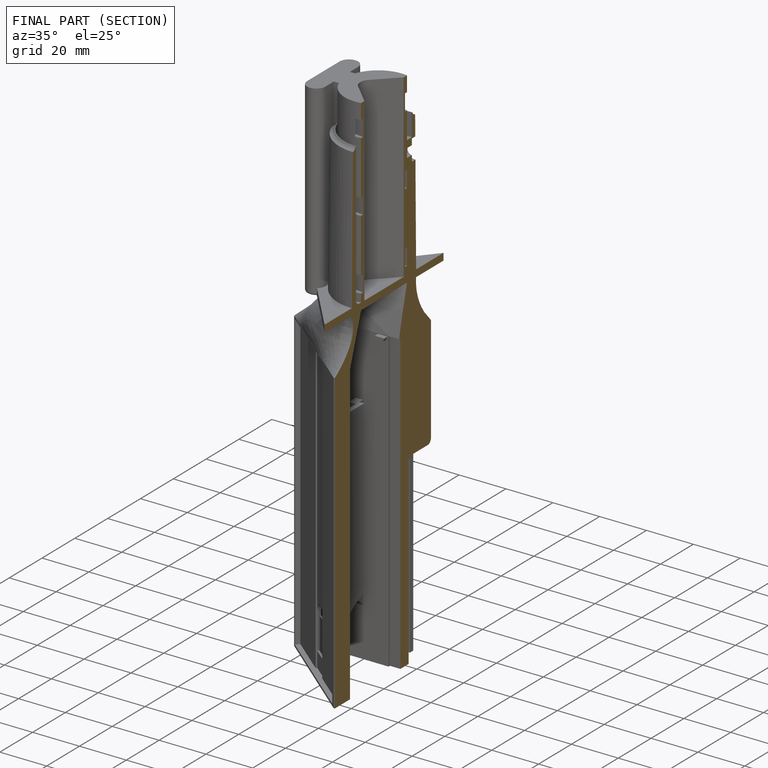
[diagram: finished part — half-section view (interior)]
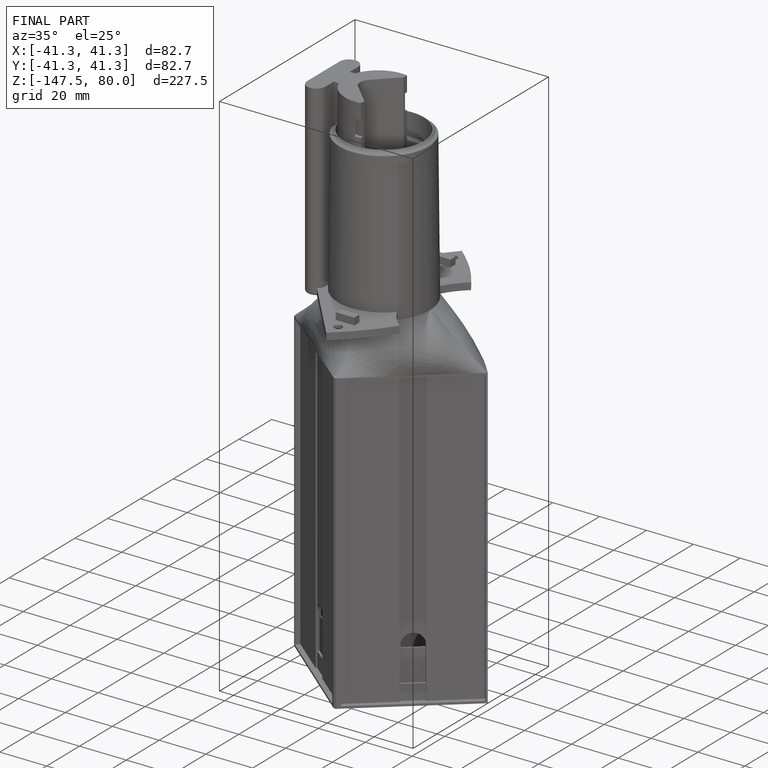
[diagram: finished part — iso view with bounding-box wireframe]
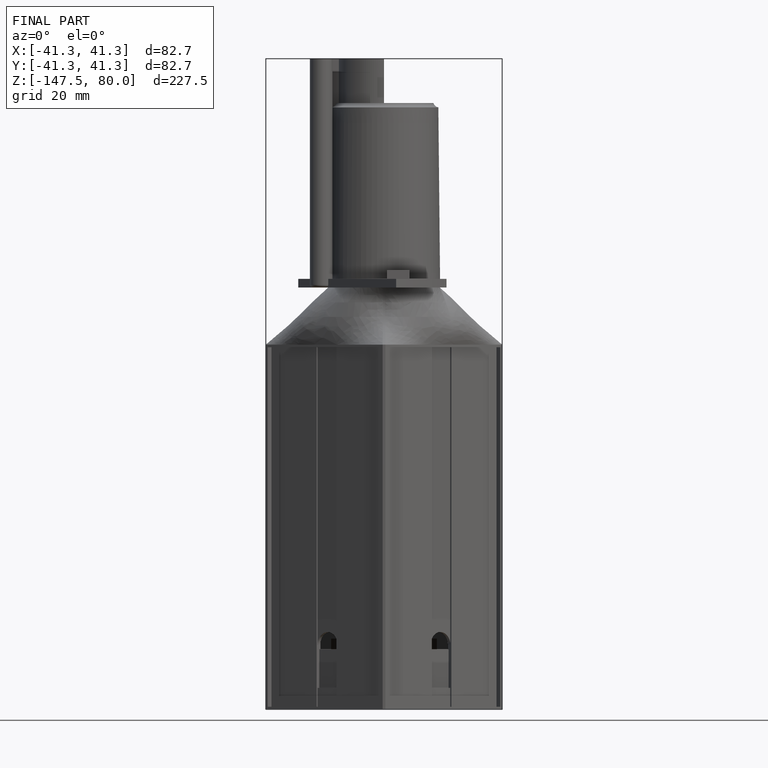
[diagram: finished part — front view with bounding-box wireframe]
